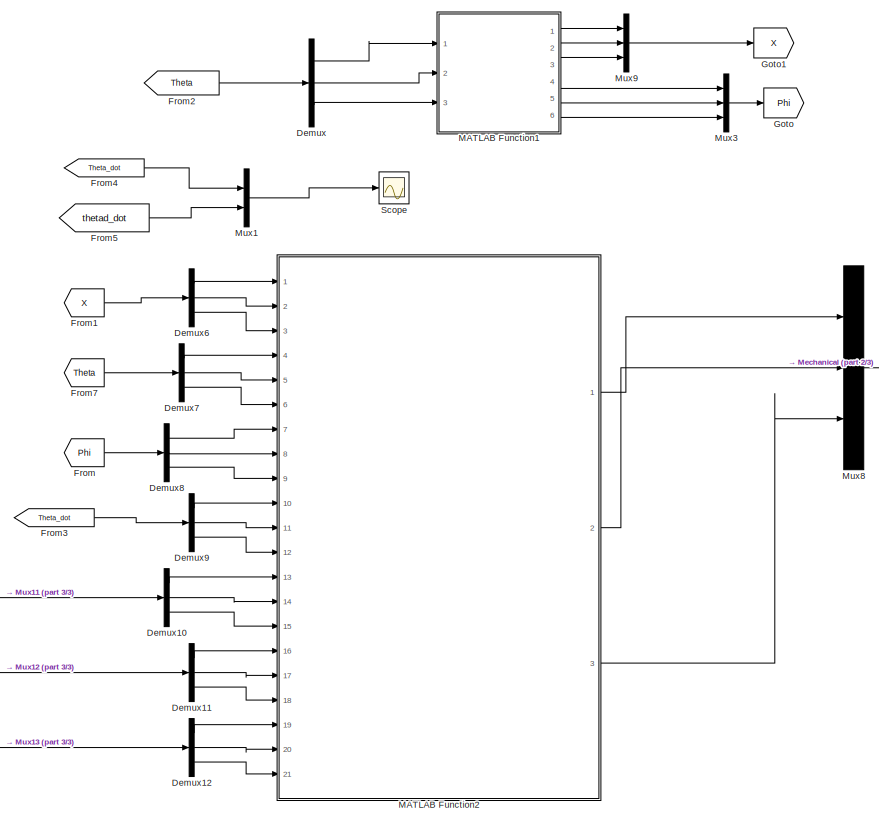
[diagram: root canvas - part 1/3, center side, full height]
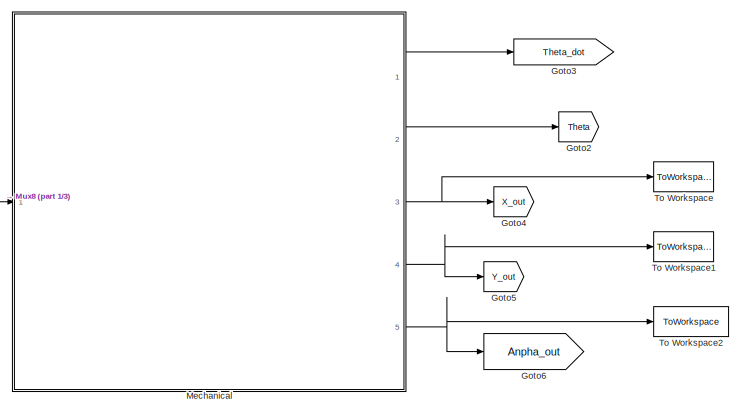
[diagram: root canvas - part 2/3, middle right region]
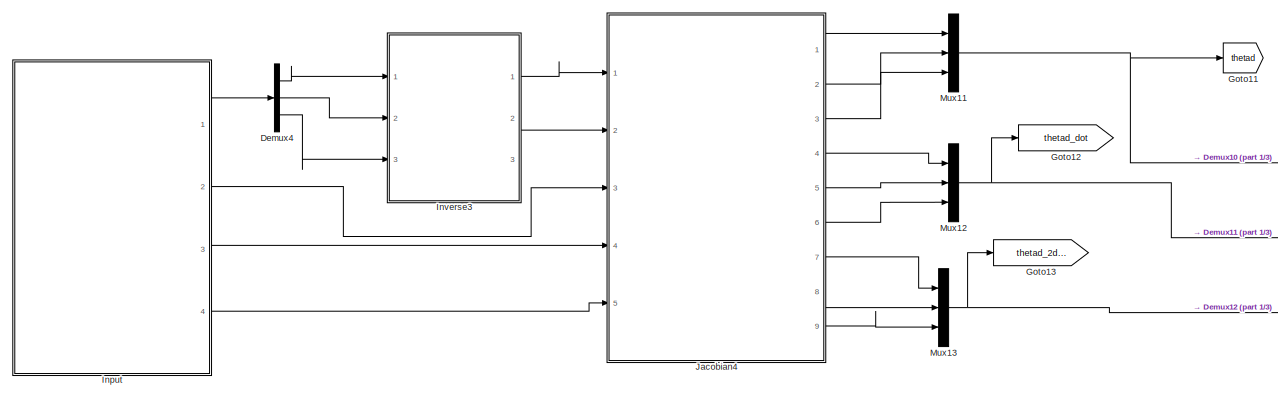
[diagram: root canvas - part 3/3, bottom left region]
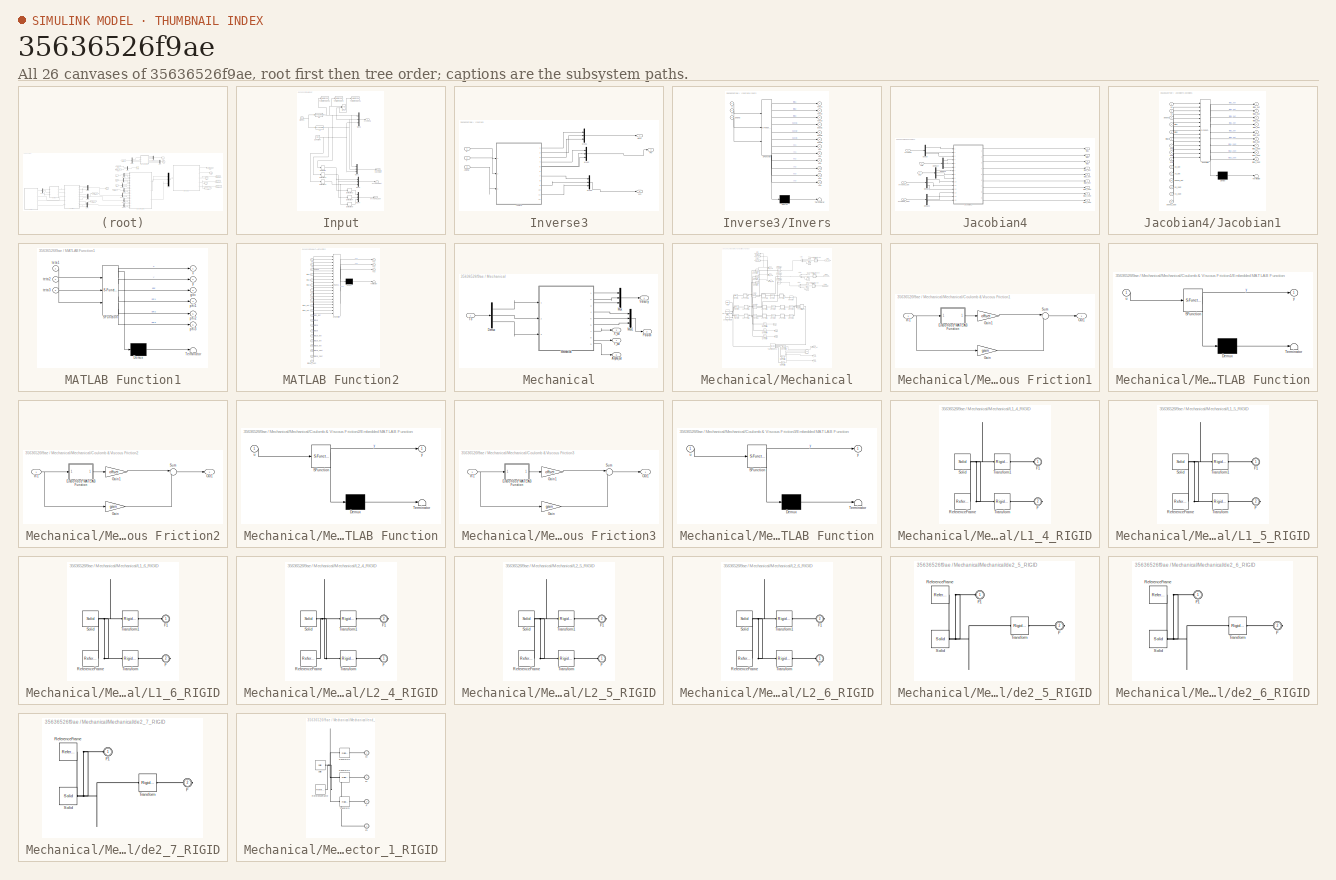
[diagram: thumbnail index - all 26 canvases of the model, root first then tree order]
MODEL slx_35636526f9ae
KIND model
CONFIG AbsTol = auto
CONFIG EnableMultiTasking = on
CONFIG FixedStep = 1e-3
CONFIG MaxStep = auto
CONFIG MinStep = auto
CONFIG RelTol = 1e-3
CONFIG SampleTimeConstraint = Unconstrained
CONFIG Solver = ode3
CONFIG SolverName = ode3
CONFIG StartTime = 0.0
CONFIG StopTime = 7
BLOCK [Demux] Demux
  DisplayOption = bar
  Outputs = 3
  Ports = [1, 3]
BLOCK [Demux] Demux10
  DisplayOption = bar
  Outputs = 3
  Ports = [1, 3]
BLOCK [Demux] Demux11
  DisplayOption = bar
  Outputs = 3
  Ports = [1, 3]
BLOCK [Demux] Demux12
  DisplayOption = bar
  Outputs = 3
  Ports = [1, 3]
BLOCK [Demux] Demux4
  DisplayOption = bar
  Outputs = 3
  Ports = [1, 3]
BLOCK [Demux] Demux6
  DisplayOption = bar
  Outputs = 3
  Ports = [1, 3]
BLOCK [Demux] Demux7
  DisplayOption = bar
  Outputs = 3
  Ports = [1, 3]
BLOCK [Demux] Demux8
  DisplayOption = bar
  Outputs = 3
  Ports = [1, 3]
BLOCK [Demux] Demux9
  DisplayOption = bar
  Outputs = 3
  Ports = [1, 3]
BLOCK [From] From
  GotoTag = Phi
BLOCK [From] From1
  GotoTag = X
BLOCK [From] From2
  GotoTag = Theta
BLOCK [From] From3
  GotoTag = Theta_dot
BLOCK [From] From4
  GotoTag = Theta_dot
BLOCK [From] From5
  GotoTag = thetad_dot
BLOCK [From] From7
  GotoTag = Theta
BLOCK [Goto] Goto
  GotoTag = Phi
BLOCK [Goto] Goto1
  GotoTag = X
BLOCK [Goto] Goto11
  GotoTag = thetad
BLOCK [Goto] Goto12
  GotoTag = thetad_dot
BLOCK [Goto] Goto13
  GotoTag = thetad_2dot
BLOCK [Goto] Goto2
  GotoTag = Theta
BLOCK [Goto] Goto3
  GotoTag = Theta_dot
BLOCK [Goto] Goto4
  GotoTag = X_out
BLOCK [Goto] Goto5
  GotoTag = Y_out
BLOCK [Goto] Goto6
  GotoTag = Anpha_out
BLOCK [SubSystem] Input
  Ports = [0, 4]
  RequestExecContextInheritance = off
BLOCK [Clock] Input/Clock1
  Decimation = 1
BLOCK [Constant] Input/Constant
  Value = pi/12
BLOCK [Derivative] Input/Derivative
BLOCK [Derivative] Input/Derivative1
BLOCK [Derivative] Input/Derivative2
BLOCK [Derivative] Input/Derivative3
BLOCK [Derivative] Input/Derivative4
BLOCK [Derivative] Input/Derivative5
BLOCK [Reference] Input/INPUT  REF=simulink/Sinks/XY Graph
  Ports = [2]
  SourceBlock = simulink/Sinks/XY Graph
  SourceProductBaseCode = SL
  SourceProductName = Simulink
  SourceType = XY scope.
BLOCK [Mux] Input/Mux1
  DisplayOption = bar
  Inputs = 3
  Ports = [3, 1]
BLOCK [Mux] Input/Mux3
  DisplayOption = bar
  Inputs = 3
  Ports = [3, 1]
BLOCK [Mux] Input/Mux4
  DisplayOption = bar
  Inputs = 3
  Ports = [3, 1]
BLOCK [Mux] Input/Mux5
  DisplayOption = bar
  Inputs = 3
  Ports = [3, 1]
BLOCK [ToWorkspace] Input/To Workspace
  MaxDataPoints = inf
  Ports = [1]
  SampleTime = -1
  VariableName = Xd
BLOCK [ToWorkspace] Input/To Workspace1
  MaxDataPoints = inf
  Ports = [1]
  SampleTime = -1
  VariableName = Yd
BLOCK [ToWorkspace] Input/To Workspace2
  MaxDataPoints = inf
  Ports = [1]
  SampleTime = -1
  SaveFormat = Timeseries
  VariableName = Time
BLOCK [Outport] Input/X Y Anpha
  IconDisplay = Port number
BLOCK [Outport] Input/X Y Anpha 2dot
  IconDisplay = Port number
  Port = 4
BLOCK [Outport] Input/X Y Anpha Jacobian
  IconDisplay = Port number
  Port = 2
BLOCK [Outport] Input/X Y Anpha dot
  IconDisplay = Port number
  Port = 3
BLOCK [Fcn] Input/X1
  Expr = 0.49+0.03*cos(pi*u(1)/3)
BLOCK [Fcn] Input/Y1
  Expr = 0.37+0.03*sin(pi*u(1)/3)
BLOCK [SubSystem] Inverse3
  Ports = [3, 3]
  RequestExecContextInheritance = off
BLOCK [Inport] Inverse3/Anpha
  IconDisplay = Port number
  Port = 3
BLOCK [SubSystem] Inverse3/Invers
  ErrorFcn = Stateflow.Translate.translate
  PermitHierarchicalResolution = ExplicitOnly
  Ports = [3, 12]
  RequestExecContextInheritance = off
  SFBlockType = MATLAB Function
  TreatAsAtomicUnit = on
BLOCK [Demux] Inverse3/Invers/ Demux 
  Outputs = 1
  Ports = [1, 1]
BLOCK [S-Function] Inverse3/Invers/ SFunction 
  EnableBusSupport = on
  FunctionName = sf_sfun
  PortCounts = [3 13]
  Ports = [3, 13]
  SFcnIsStateOwnerBlock = off
  SFunctionDeploymentMode = off
  Tag = Stateflow S-Function CTC_3PPP 9
BLOCK [Terminator] Inverse3/Invers/ Terminator 
BLOCK [Inport] Inverse3/Invers/anpha
  IconDisplay = Port number
  Port = 3
BLOCK [Outport] Inverse3/Invers/passi1
  IconDisplay = Port number
  Port = 4
BLOCK [Outport] Inverse3/Invers/passi2
  IconDisplay = Port number
  Port = 5
BLOCK [Outport] Inverse3/Invers/passi3
  IconDisplay = Port number
  Port = 6
BLOCK [Outport] Inverse3/Invers/teta1
  IconDisplay = Port number
BLOCK [Outport] Inverse3/Invers/teta2
  IconDisplay = Port number
  Port = 2
BLOCK [Outport] Inverse3/Invers/teta3
  IconDisplay = Port number
  Port = 3
BLOCK [Inport] Inverse3/Invers/x
  IconDisplay = Port number
BLOCK [Outport] Inverse3/Invers/xc1
  IconDisplay = Port number
  Port = 7
BLOCK [Outport] Inverse3/Invers/xc2
  IconDisplay = Port number
  Port = 9
BLOCK [Outport] Inverse3/Invers/xc3
  IconDisplay = Port number
  Port = 11
BLOCK [Inport] Inverse3/Invers/y
  IconDisplay = Port number
  Port = 2
BLOCK [Outport] Inverse3/Invers/yc1
  IconDisplay = Port number
  Port = 8
BLOCK [Outport] Inverse3/Invers/yc2
  IconDisplay = Port number
  Port = 10
BLOCK [Outport] Inverse3/Invers/yc3
  IconDisplay = Port number
  Port = 12
BLOCK [Mux] Inverse3/Mux1
  DisplayOption = bar
  Inputs = 3
  Ports = [3, 1]
BLOCK [Mux] Inverse3/Mux2
  DisplayOption = bar
  Inputs = 3
  Ports = [3, 1]
BLOCK [Mux] Inverse3/Mux3
  DisplayOption = bar
  Inputs = 3
  Ports = [3, 1]
BLOCK [Outport] Inverse3/Phi
  IconDisplay = Port number
  Port = 2
BLOCK [Outport] Inverse3/Teta
  IconDisplay = Port number
BLOCK [Inport] Inverse3/X
  IconDisplay = Port number
BLOCK [Inport] Inverse3/Y
  IconDisplay = Port number
  Port = 2
BLOCK [Outport] Inverse3/xc2
  IconDisplay = Port number
  Port = 3
BLOCK [SubSystem] Jacobian4
  Ports = [5, 9]
  RequestExecContextInheritance = off
BLOCK [Demux] Jacobian4/Demux
  DisplayOption = bar
  Outputs = 3
  Ports = [1, 3]
BLOCK [Demux] Jacobian4/Demux1
  DisplayOption = bar
  Outputs = 3
  Ports = [1, 3]
BLOCK [Demux] Jacobian4/Demux2
  DisplayOption = bar
  Outputs = 3
  Ports = [1, 3]
BLOCK [Demux] Jacobian4/Demux4
  DisplayOption = bar
  Outputs = 3
  Ports = [1, 3]
BLOCK [Demux] Jacobian4/Demux5
  DisplayOption = bar
  Outputs = 3
  Ports = [1, 3]
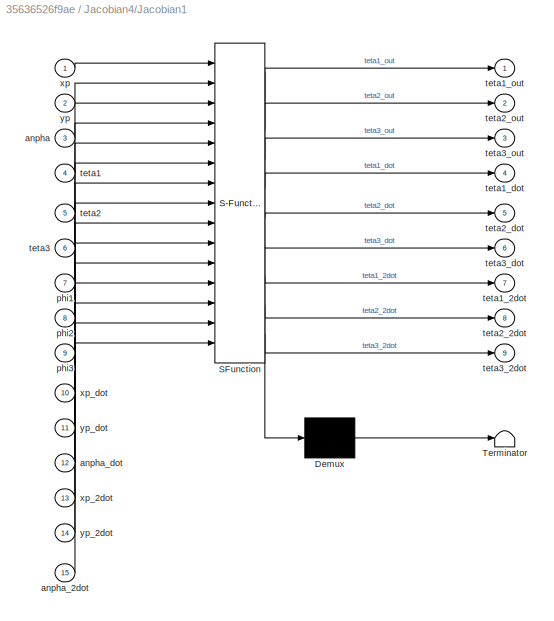
BLOCK [SubSystem] Jacobian4/Jacobian1
  ErrorFcn = Stateflow.Translate.translate
  PermitHierarchicalResolution = ExplicitOnly
  Ports = [15, 9]
  RequestExecContextInheritance = off
  SFBlockType = MATLAB Function
  TreatAsAtomicUnit = on
BLOCK [Demux] Jacobian4/Jacobian1/ Demux 
  Outputs = 1
  Ports = [1, 1]
BLOCK [S-Function] Jacobian4/Jacobian1/ SFunction 
  EnableBusSupport = on
  FunctionName = sf_sfun
  PortCounts = [15 10]
  Ports = [15, 10]
  SFcnIsStateOwnerBlock = off
  SFunctionDeploymentMode = off
  Tag = Stateflow S-Function CTC_3PPP 11
BLOCK [Terminator] Jacobian4/Jacobian1/ Terminator 
BLOCK [Inport] Jacobian4/Jacobian1/anpha
  IconDisplay = Port number
  Port = 3
BLOCK [Inport] Jacobian4/Jacobian1/anpha_2dot
  IconDisplay = Port number
  Port = 15
BLOCK [Inport] Jacobian4/Jacobian1/anpha_dot
  IconDisplay = Port number
  Port = 12
BLOCK [Inport] Jacobian4/Jacobian1/phi1
  IconDisplay = Port number
  Port = 7
BLOCK [Inport] Jacobian4/Jacobian1/phi2
  IconDisplay = Port number
  Port = 8
BLOCK [Inport] Jacobian4/Jacobian1/phi3
  IconDisplay = Port number
  Port = 9
BLOCK [Inport] Jacobian4/Jacobian1/teta1
  IconDisplay = Port number
  Port = 4
BLOCK [Outport] Jacobian4/Jacobian1/teta1_2dot
  IconDisplay = Port number
  Port = 7
BLOCK [Outport] Jacobian4/Jacobian1/teta1_dot
  IconDisplay = Port number
  Port = 4
BLOCK [Outport] Jacobian4/Jacobian1/teta1_out
  IconDisplay = Port number
BLOCK [Inport] Jacobian4/Jacobian1/teta2
  IconDisplay = Port number
  Port = 5
BLOCK [Outport] Jacobian4/Jacobian1/teta2_2dot
  IconDisplay = Port number
  Port = 8
BLOCK [Outport] Jacobian4/Jacobian1/teta2_dot
  IconDisplay = Port number
  Port = 5
BLOCK [Outport] Jacobian4/Jacobian1/teta2_out
  IconDisplay = Port number
  Port = 2
BLOCK [Inport] Jacobian4/Jacobian1/teta3
  IconDisplay = Port number
  Port = 6
BLOCK [Outport] Jacobian4/Jacobian1/teta3_2dot
  IconDisplay = Port number
  Port = 9
BLOCK [Outport] Jacobian4/Jacobian1/teta3_dot
  IconDisplay = Port number
  Port = 6
BLOCK [Outport] Jacobian4/Jacobian1/teta3_out
  IconDisplay = Port number
  Port = 3
BLOCK [Inport] Jacobian4/Jacobian1/xp
  IconDisplay = Port number
BLOCK [Inport] Jacobian4/Jacobian1/xp_2dot
  IconDisplay = Port number
  Port = 13
BLOCK [Inport] Jacobian4/Jacobian1/xp_dot
  IconDisplay = Port number
  Port = 10
BLOCK [Inport] Jacobian4/Jacobian1/yp
  IconDisplay = Port number
  Port = 2
BLOCK [Inport] Jacobian4/Jacobian1/yp_2dot
  IconDisplay = Port number
  Port = 14
BLOCK [Inport] Jacobian4/Jacobian1/yp_dot
  IconDisplay = Port number
  Port = 11
BLOCK [Inport] Jacobian4/Phi
  IconDisplay = Port number
  Port = 2
BLOCK [Inport] Jacobian4/Teta
  IconDisplay = Port number
BLOCK [Inport] Jacobian4/XYAnpha
  IconDisplay = Port number
  Port = 3
BLOCK [Inport] Jacobian4/XYAnpha_2dot
  IconDisplay = Port number
  Port = 5
BLOCK [Inport] Jacobian4/XYAnpha_dot
  IconDisplay = Port number
  Port = 4
BLOCK [Outport] Jacobian4/teta1
  IconDisplay = Port number
BLOCK [Outport] Jacobian4/teta1_2dot
  IconDisplay = Port number
  Port = 7
BLOCK [Outport] Jacobian4/teta1_dot
  IconDisplay = Port number
  Port = 4
BLOCK [Outport] Jacobian4/teta2
  IconDisplay = Port number
  Port = 2
BLOCK [Outport] Jacobian4/teta2_2dot
  IconDisplay = Port number
  Port = 8
BLOCK [Outport] Jacobian4/teta2_dot
  IconDisplay = Port number
  Port = 5
BLOCK [Outport] Jacobian4/teta3
  IconDisplay = Port number
  Port = 3
BLOCK [Outport] Jacobian4/teta3_2dot
  IconDisplay = Port number
  Port = 9
BLOCK [Outport] Jacobian4/teta3_dot
  IconDisplay = Port number
  Port = 6
BLOCK [SubSystem] MATLAB Function1
  ErrorFcn = Stateflow.Translate.translate
  PermitHierarchicalResolution = ExplicitOnly
  Ports = [3, 6]
  RequestExecContextInheritance = off
  SFBlockType = MATLAB Function
  TreatAsAtomicUnit = on
BLOCK [Demux] MATLAB Function1/ Demux 
  Outputs = 1
  Ports = [1, 1]
BLOCK [S-Function] MATLAB Function1/ SFunction 
  EnableBusSupport = on
  FunctionName = sf_sfun
  PortCounts = [3 7]
  Ports = [3, 7]
  SFcnIsStateOwnerBlock = off
  SFunctionDeploymentMode = off
  Tag = Stateflow S-Function CTC_3PPP 1
BLOCK [Terminator] MATLAB Function1/ Terminator 
BLOCK [Outport] MATLAB Function1/goc
  IconDisplay = Port number
  Port = 3
BLOCK [Outport] MATLAB Function1/phi1
  IconDisplay = Port number
  Port = 4
BLOCK [Outport] MATLAB Function1/phi2
  IconDisplay = Port number
  Port = 5
BLOCK [Outport] MATLAB Function1/phi3
  IconDisplay = Port number
  Port = 6
BLOCK [Inport] MATLAB Function1/teta1
  IconDisplay = Port number
BLOCK [Inport] MATLAB Function1/teta2
  IconDisplay = Port number
  Port = 2
BLOCK [Inport] MATLAB Function1/teta3
  IconDisplay = Port number
  Port = 3
BLOCK [Outport] MATLAB Function1/x
  IconDisplay = Port number
BLOCK [Outport] MATLAB Function1/y
  IconDisplay = Port number
  Port = 2
BLOCK [SubSystem] MATLAB Function2
  ErrorFcn = Stateflow.Translate.translate
  PermitHierarchicalResolution = ExplicitOnly
  Ports = [21, 3]
  RequestExecContextInheritance = off
  SFBlockType = MATLAB Function
  TreatAsAtomicUnit = on
BLOCK [Demux] MATLAB Function2/ Demux 
  Outputs = 1
  Ports = [1, 1]
BLOCK [S-Function] MATLAB Function2/ SFunction 
  EnableBusSupport = on
  FunctionName = sf_sfun
  PortCounts = [21 4]
  Ports = [21, 4]
  SFcnIsStateOwnerBlock = off
  SFunctionDeploymentMode = off
  Tag = Stateflow S-Function CTC_3PPP 6
BLOCK [Terminator] MATLAB Function2/ Terminator 
BLOCK [Outport] MATLAB Function2/To1
  IconDisplay = Port number
BLOCK [Outport] MATLAB Function2/To2
  IconDisplay = Port number
  Port = 2
BLOCK [Outport] MATLAB Function2/To3
  IconDisplay = Port number
  Port = 3
BLOCK [Inport] MATLAB Function2/anpha
  IconDisplay = Port number
  Port = 3
BLOCK [Inport] MATLAB Function2/phi1
  IconDisplay = Port number
  Port = 7
BLOCK [Inport] MATLAB Function2/phi2
  IconDisplay = Port number
  Port = 8
BLOCK [Inport] MATLAB Function2/phi3
  IconDisplay = Port number
  Port = 9
BLOCK [Inport] MATLAB Function2/teta1
  IconDisplay = Port number
  Port = 4
BLOCK [Inport] MATLAB Function2/teta1_dot
  IconDisplay = Port number
  Port = 10
BLOCK [Inport] MATLAB Function2/teta1d
  IconDisplay = Port number
  Port = 13
BLOCK [Inport] MATLAB Function2/teta1d_2dot
  IconDisplay = Port number
  Port = 19
BLOCK [Inport] MATLAB Function2/teta1d_dot
  IconDisplay = Port number
  Port = 16
BLOCK [Inport] MATLAB Function2/teta2
  IconDisplay = Port number
  Port = 5
BLOCK [Inport] MATLAB Function2/teta2_dot
  IconDisplay = Port number
  Port = 11
BLOCK [Inport] MATLAB Function2/teta2d
  IconDisplay = Port number
  Port = 14
BLOCK [Inport] MATLAB Function2/teta2d_2dot
  IconDisplay = Port number
  Port = 20
BLOCK [Inport] MATLAB Function2/teta2d_dot
  IconDisplay = Port number
  Port = 17
BLOCK [Inport] MATLAB Function2/teta3
  IconDisplay = Port number
  Port = 6
BLOCK [Inport] MATLAB Function2/teta3_dot
  IconDisplay = Port number
  Port = 12
BLOCK [Inport] MATLAB Function2/teta3d
  IconDisplay = Port number
  Port = 15
BLOCK [Inport] MATLAB Function2/teta3d_2dot
  IconDisplay = Port number
  Port = 21
BLOCK [Inport] MATLAB Function2/teta3d_dot
  IconDisplay = Port number
  Port = 18
BLOCK [Inport] MATLAB Function2/xp
  IconDisplay = Port number
BLOCK [Inport] MATLAB Function2/yp
  IconDisplay = Port number
  Port = 2
BLOCK [SubSystem] Mechanical
  Ports = [1, 5]
  RequestExecContextInheritance = off
BLOCK [Outport] Mechanical/Anpha_out
  IconDisplay = Port number
  Port = 5
BLOCK [Demux] Mechanical/Demux
  DisplayOption = bar
  Outputs = 3
  Ports = [1, 3]
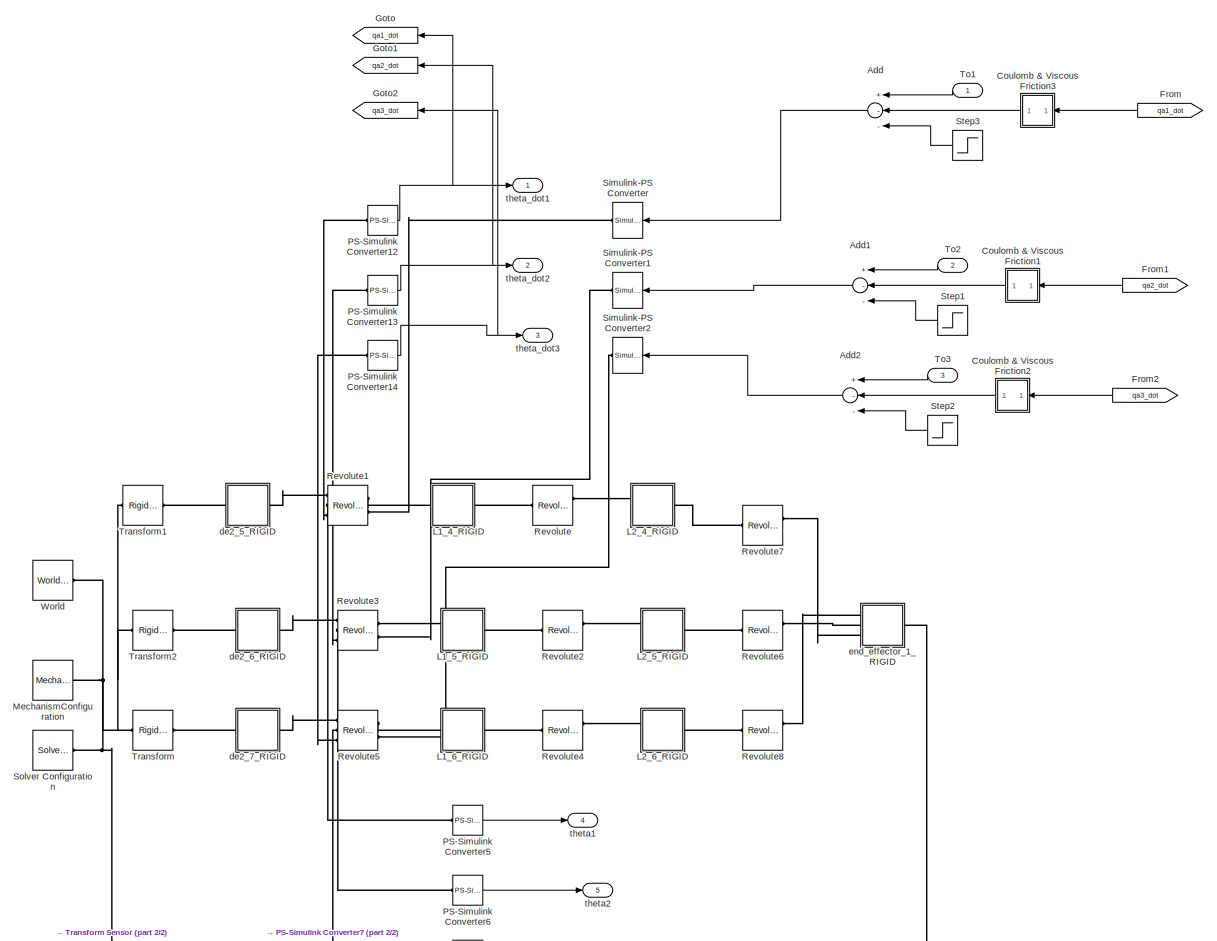
[diagram: Mechanical/Mechanical - part 1/2, full width, middle band]
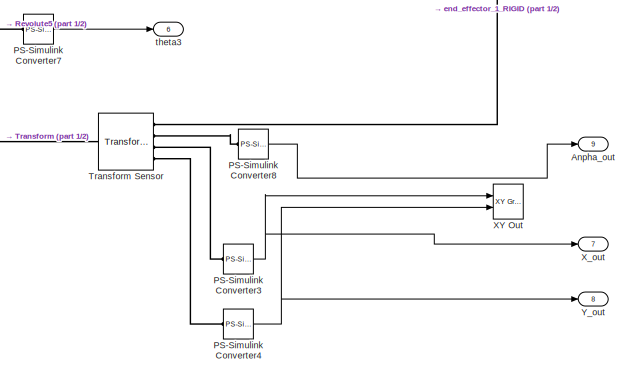
[diagram: Mechanical/Mechanical - part 2/2, bottom center region]
BLOCK [SubSystem] Mechanical/Mechanical
  Ports = [3, 9]
  RequestExecContextInheritance = off
BLOCK [Sum] Mechanical/Mechanical/Add
  InputSameDT = off
  Inputs = +--
  OutDataTypeStr = Inherit: Inherit via internal rule
  Ports = [3, 1]
  SaturateOnIntegerOverflow = off
BLOCK [Sum] Mechanical/Mechanical/Add1
  InputSameDT = off
  Inputs = +--
  OutDataTypeStr = Inherit: Inherit via internal rule
  Ports = [3, 1]
  SaturateOnIntegerOverflow = off
BLOCK [Sum] Mechanical/Mechanical/Add2
  InputSameDT = off
  Inputs = +--
  OutDataTypeStr = Inherit: Inherit via internal rule
  Ports = [3, 1]
  SaturateOnIntegerOverflow = off
BLOCK [Outport] Mechanical/Mechanical/Anpha_out
  IconDisplay = Port number
  Port = 9
BLOCK [SubSystem] Mechanical/Mechanical/Coulomb & Viscous Friction1
  AncestorBlock = simulink/Discontinuities/Coulomb &\nViscous Friction
  Ports = [1, 1]
  RequestExecContextInheritance = off
BLOCK [SubSystem] Mechanical/Mechanical/Coulomb & Viscous Friction1/Embedded MATLAB Function
  ErrorFcn = Stateflow.Translate.translate
  PermitHierarchicalResolution = ExplicitOnly
  Ports = [1, 1]
  RequestExecContextInheritance = off
  SFBlockType = MATLAB Function
  TreatAsAtomicUnit = on
BLOCK [Demux] Mechanical/Mechanical/Coulomb & Viscous Friction1/Embedded MATLAB Function/ Demux 
  Outputs = 1
  Ports = [1, 1]
BLOCK [S-Function] Mechanical/Mechanical/Coulomb & Viscous Friction1/Embedded MATLAB Function/ SFunction 
  EnableBusSupport = on
  FunctionName = sf_sfun
  PortCounts = [1 2]
  Ports = [1, 2]
  SFcnIsStateOwnerBlock = off
  SFunctionDeploymentMode = off
  Tag = Stateflow S-Function CTC_3PPP 4
BLOCK [Terminator] Mechanical/Mechanical/Coulomb & Viscous Friction1/Embedded MATLAB Function/ Terminator 
BLOCK [Inport] Mechanical/Mechanical/Coulomb & Viscous Friction1/Embedded MATLAB Function/u
  IconDisplay = Port number
BLOCK [Outport] Mechanical/Mechanical/Coulomb & Viscous Friction1/Embedded MATLAB Function/y
  IconDisplay = Port number
BLOCK [Gain] Mechanical/Mechanical/Coulomb & Viscous Friction1/Gain
  DisableCoverage = on
  Gain = gain
  ParamDataTypeStr = Inherit: Inherit via internal rule
BLOCK [Gain] Mechanical/Mechanical/Coulomb & Viscous Friction1/Gain1
  DisableCoverage = on
  Gain = offset
  OutDataTypeStr = Inherit: Inherit via back propagation
  ParamDataTypeStr = Inherit: Inherit via internal rule
BLOCK [Inport] Mechanical/Mechanical/Coulomb & Viscous Friction1/In1
  IconDisplay = Port number
BLOCK [Outport] Mechanical/Mechanical/Coulomb & Viscous Friction1/Out1
  IconDisplay = Port number
BLOCK [Sum] Mechanical/Mechanical/Coulomb & Viscous Friction1/Sum
  IconShape = round
  Inputs = |++
  Ports = [2, 1]
BLOCK [SubSystem] Mechanical/Mechanical/Coulomb & Viscous Friction2
  AncestorBlock = simulink/Discontinuities/Coulomb &\nViscous Friction
  Ports = [1, 1]
  RequestExecContextInheritance = off
BLOCK [SubSystem] Mechanical/Mechanical/Coulomb & Viscous Friction2/Embedded MATLAB Function
  ErrorFcn = Stateflow.Translate.translate
  PermitHierarchicalResolution = ExplicitOnly
  Ports = [1, 1]
  RequestExecContextInheritance = off
  SFBlockType = MATLAB Function
  TreatAsAtomicUnit = on
BLOCK [Demux] Mechanical/Mechanical/Coulomb & Viscous Friction2/Embedded MATLAB Function/ Demux 
  Outputs = 1
  Ports = [1, 1]
BLOCK [S-Function] Mechanical/Mechanical/Coulomb & Viscous Friction2/Embedded MATLAB Function/ SFunction 
  EnableBusSupport = on
  FunctionName = sf_sfun
  PortCounts = [1 2]
  Ports = [1, 2]
  SFcnIsStateOwnerBlock = off
  SFunctionDeploymentMode = off
  Tag = Stateflow S-Function CTC_3PPP 5
BLOCK [Terminator] Mechanical/Mechanical/Coulomb & Viscous Friction2/Embedded MATLAB Function/ Terminator 
BLOCK [Inport] Mechanical/Mechanical/Coulomb & Viscous Friction2/Embedded MATLAB Function/u
  IconDisplay = Port number
BLOCK [Outport] Mechanical/Mechanical/Coulomb & Viscous Friction2/Embedded MATLAB Function/y
  IconDisplay = Port number
BLOCK [Gain] Mechanical/Mechanical/Coulomb & Viscous Friction2/Gain
  DisableCoverage = on
  Gain = gain
  ParamDataTypeStr = Inherit: Inherit via internal rule
BLOCK [Gain] Mechanical/Mechanical/Coulomb & Viscous Friction2/Gain1
  DisableCoverage = on
  Gain = offset
  OutDataTypeStr = Inherit: Inherit via back propagation
  ParamDataTypeStr = Inherit: Inherit via internal rule
BLOCK [Inport] Mechanical/Mechanical/Coulomb & Viscous Friction2/In1
  IconDisplay = Port number
BLOCK [Outport] Mechanical/Mechanical/Coulomb & Viscous Friction2/Out1
  IconDisplay = Port number
BLOCK [Sum] Mechanical/Mechanical/Coulomb & Viscous Friction2/Sum
  IconShape = round
  Inputs = |++
  Ports = [2, 1]
BLOCK [SubSystem] Mechanical/Mechanical/Coulomb & Viscous Friction3
  AncestorBlock = simulink/Discontinuities/Coulomb &\nViscous Friction
  Ports = [1, 1]
  RequestExecContextInheritance = off
BLOCK [SubSystem] Mechanical/Mechanical/Coulomb & Viscous Friction3/Embedded MATLAB Function
  ErrorFcn = Stateflow.Translate.translate
  PermitHierarchicalResolution = ExplicitOnly
  Ports = [1, 1]
  RequestExecContextInheritance = off
  SFBlockType = MATLAB Function
  TreatAsAtomicUnit = on
BLOCK [Demux] Mechanical/Mechanical/Coulomb & Viscous Friction3/Embedded MATLAB Function/ Demux 
  Outputs = 1
  Ports = [1, 1]
BLOCK [S-Function] Mechanical/Mechanical/Coulomb & Viscous Friction3/Embedded MATLAB Function/ SFunction 
  EnableBusSupport = on
  FunctionName = sf_sfun
  PortCounts = [1 2]
  Ports = [1, 2]
  SFcnIsStateOwnerBlock = off
  SFunctionDeploymentMode = off
  Tag = Stateflow S-Function CTC_3PPP 2
BLOCK [Terminator] Mechanical/Mechanical/Coulomb & Viscous Friction3/Embedded MATLAB Function/ Terminator 
BLOCK [Inport] Mechanical/Mechanical/Coulomb & Viscous Friction3/Embedded MATLAB Function/u
  IconDisplay = Port number
BLOCK [Outport] Mechanical/Mechanical/Coulomb & Viscous Friction3/Embedded MATLAB Function/y
  IconDisplay = Port number
BLOCK [Gain] Mechanical/Mechanical/Coulomb & Viscous Friction3/Gain
  DisableCoverage = on
  Gain = gain
  ParamDataTypeStr = Inherit: Inherit via internal rule
BLOCK [Gain] Mechanical/Mechanical/Coulomb & Viscous Friction3/Gain1
  DisableCoverage = on
  Gain = offset
  OutDataTypeStr = Inherit: Inherit via back propagation
  ParamDataTypeStr = Inherit: Inherit via internal rule
BLOCK [Inport] Mechanical/Mechanical/Coulomb & Viscous Friction3/In1
  IconDisplay = Port number
BLOCK [Outport] Mechanical/Mechanical/Coulomb & Viscous Friction3/Out1
  IconDisplay = Port number
BLOCK [Sum] Mechanical/Mechanical/Coulomb & Viscous Friction3/Sum
  IconShape = round
  Inputs = |++
  Ports = [2, 1]
BLOCK [From] Mechanical/Mechanical/From
  GotoTag = qa1_dot
BLOCK [From] Mechanical/Mechanical/From1
  GotoTag = qa2_dot
BLOCK [From] Mechanical/Mechanical/From2
  GotoTag = qa3_dot
BLOCK [Goto] Mechanical/Mechanical/Goto
  GotoTag = qa1_dot
BLOCK [Goto] Mechanical/Mechanical/Goto1
  GotoTag = qa2_dot
BLOCK [Goto] Mechanical/Mechanical/Goto2
  GotoTag = qa3_dot
BLOCK [SubSystem] Mechanical/Mechanical/L1_4_RIGID
  Ports = [0, 0, 0, 0, 0, 1, 1]
  RequestExecContextInheritance = off
BLOCK [PMIOPort] Mechanical/Mechanical/L1_4_RIGID/F
  Port = 2
  Side = Right
BLOCK [PMIOPort] Mechanical/Mechanical/L1_4_RIGID/F1
  Side = Left
BLOCK [Reference] Mechanical/Mechanical/L1_4_RIGID/ReferenceFrame  REF=sm_lib/Frames and
Transforms/Reference
Frame
  Ports = [0, 0, 0, 0, 0, 0, 1]
  SourceBlock = sm_lib/Frames and\nTransforms/Reference\nFrame
  SourceProductBaseCode = MS
  SourceProductName = Simscape Multibody
  SourceType = Reference\nFrame
BLOCK [Reference] Mechanical/Mechanical/L1_4_RIGID/Solid  REF=sm_lib/Body Elements/Solid
  Ports = [0, 0, 0, 0, 0, 0, 1]
  SourceBlock = sm_lib/Body Elements/Solid
  SourceProductBaseCode = MS
  SourceProductName = Simscape Multibody
  SourceType = Solid
BLOCK [Reference] Mechanical/Mechanical/L1_4_RIGID/Transform  REF=sm_lib/Frames and
Transforms/Rigid
Transform
  Ports = [0, 0, 0, 0, 0, 1, 1]
  SourceBlock = sm_lib/Frames and\nTransforms/Rigid\nTransform
  SourceProductBaseCode = MS
  SourceProductName = Simscape Multibody
  SourceType = Rigid\nTransform
BLOCK [Reference] Mechanical/Mechanical/L1_4_RIGID/Transform1  REF=sm_lib/Frames and
Transforms/Rigid
Transform
  Ports = [0, 0, 0, 0, 0, 1, 1]
  SourceBlock = sm_lib/Frames and\nTransforms/Rigid\nTransform
  SourceProductBaseCode = MS
  SourceProductName = Simscape Multibody
  SourceType = Rigid\nTransform
BLOCK [SubSystem] Mechanical/Mechanical/L1_5_RIGID
  Ports = [0, 0, 0, 0, 0, 1, 1]
  RequestExecContextInheritance = off
BLOCK [PMIOPort] Mechanical/Mechanical/L1_5_RIGID/F
  Port = 2
  Side = Right
BLOCK [PMIOPort] Mechanical/Mechanical/L1_5_RIGID/F1
  Side = Left
BLOCK [Reference] Mechanical/Mechanical/L1_5_RIGID/ReferenceFrame  REF=sm_lib/Frames and
Transforms/Reference
Frame
  Ports = [0, 0, 0, 0, 0, 0, 1]
  SourceBlock = sm_lib/Frames and\nTransforms/Reference\nFrame
  SourceProductBaseCode = MS
  SourceProductName = Simscape Multibody
  SourceType = Reference\nFrame
BLOCK [Reference] Mechanical/Mechanical/L1_5_RIGID/Solid  REF=sm_lib/Body Elements/Solid
  Ports = [0, 0, 0, 0, 0, 0, 1]
  SourceBlock = sm_lib/Body Elements/Solid
  SourceProductBaseCode = MS
  SourceProductName = Simscape Multibody
  SourceType = Solid
BLOCK [Reference] Mechanical/Mechanical/L1_5_RIGID/Transform  REF=sm_lib/Frames and
Transforms/Rigid
Transform
  Ports = [0, 0, 0, 0, 0, 1, 1]
  SourceBlock = sm_lib/Frames and\nTransforms/Rigid\nTransform
  SourceProductBaseCode = MS
  SourceProductName = Simscape Multibody
  SourceType = Rigid\nTransform
BLOCK [Reference] Mechanical/Mechanical/L1_5_RIGID/Transform1  REF=sm_lib/Frames and
Transforms/Rigid
Transform
  Ports = [0, 0, 0, 0, 0, 1, 1]
  SourceBlock = sm_lib/Frames and\nTransforms/Rigid\nTransform
  SourceProductBaseCode = MS
  SourceProductName = Simscape Multibody
  SourceType = Rigid\nTransform
BLOCK [SubSystem] Mechanical/Mechanical/L1_6_RIGID
  Ports = [0, 0, 0, 0, 0, 1, 1]
  RequestExecContextInheritance = off
BLOCK [PMIOPort] Mechanical/Mechanical/L1_6_RIGID/F
  Port = 2
  Side = Right
BLOCK [PMIOPort] Mechanical/Mechanical/L1_6_RIGID/F1
  Side = Left
BLOCK [Reference] Mechanical/Mechanical/L1_6_RIGID/ReferenceFrame  REF=sm_lib/Frames and
Transforms/Reference
Frame
  Ports = [0, 0, 0, 0, 0, 0, 1]
  SourceBlock = sm_lib/Frames and\nTransforms/Reference\nFrame
  SourceProductBaseCode = MS
  SourceProductName = Simscape Multibody
  SourceType = Reference\nFrame
BLOCK [Reference] Mechanical/Mechanical/L1_6_RIGID/Solid  REF=sm_lib/Body Elements/Solid
  Ports = [0, 0, 0, 0, 0, 0, 1]
  SourceBlock = sm_lib/Body Elements/Solid
  SourceProductBaseCode = MS
  SourceProductName = Simscape Multibody
  SourceType = Solid
BLOCK [Reference] Mechanical/Mechanical/L1_6_RIGID/Transform  REF=sm_lib/Frames and
Transforms/Rigid
Transform
  Ports = [0, 0, 0, 0, 0, 1, 1]
  SourceBlock = sm_lib/Frames and\nTransforms/Rigid\nTransform
  SourceProductBaseCode = MS
  SourceProductName = Simscape Multibody
  SourceType = Rigid\nTransform
BLOCK [Reference] Mechanical/Mechanical/L1_6_RIGID/Transform1  REF=sm_lib/Frames and
Transforms/Rigid
Transform
  Ports = [0, 0, 0, 0, 0, 1, 1]
  SourceBlock = sm_lib/Frames and\nTransforms/Rigid\nTransform
  SourceProductBaseCode = MS
  SourceProductName = Simscape Multibody
  SourceType = Rigid\nTransform
BLOCK [SubSystem] Mechanical/Mechanical/L2_4_RIGID
  Ports = [0, 0, 0, 0, 0, 1, 1]
  RequestExecContextInheritance = off
BLOCK [PMIOPort] Mechanical/Mechanical/L2_4_RIGID/F
  Side = Left
BLOCK [PMIOPort] Mechanical/Mechanical/L2_4_RIGID/F1
  Port = 2
  Side = Right
BLOCK [Reference] Mechanical/Mechanical/L2_4_RIGID/ReferenceFrame  REF=sm_lib/Frames and
Transforms/Reference
Frame
  Ports = [0, 0, 0, 0, 0, 0, 1]
  SourceBlock = sm_lib/Frames and\nTransforms/Reference\nFrame
  SourceProductBaseCode = MS
  SourceProductName = Simscape Multibody
  SourceType = Reference\nFrame
BLOCK [Reference] Mechanical/Mechanical/L2_4_RIGID/Solid  REF=sm_lib/Body Elements/Solid
  Ports = [0, 0, 0, 0, 0, 0, 1]
  SourceBlock = sm_lib/Body Elements/Solid
  SourceProductBaseCode = MS
  SourceProductName = Simscape Multibody
  SourceType = Solid
BLOCK [Reference] Mechanical/Mechanical/L2_4_RIGID/Transform  REF=sm_lib/Frames and
Transforms/Rigid
Transform
  Ports = [0, 0, 0, 0, 0, 1, 1]
  SourceBlock = sm_lib/Frames and\nTransforms/Rigid\nTransform
  SourceProductBaseCode = MS
  SourceProductName = Simscape Multibody
  SourceType = Rigid\nTransform
BLOCK [Reference] Mechanical/Mechanical/L2_4_RIGID/Transform1  REF=sm_lib/Frames and
Transforms/Rigid
Transform
  Ports = [0, 0, 0, 0, 0, 1, 1]
  SourceBlock = sm_lib/Frames and\nTransforms/Rigid\nTransform
  SourceProductBaseCode = MS
  SourceProductName = Simscape Multibody
  SourceType = Rigid\nTransform
BLOCK [SubSystem] Mechanical/Mechanical/L2_5_RIGID
  Ports = [0, 0, 0, 0, 0, 1, 1]
  RequestExecContextInheritance = off
BLOCK [PMIOPort] Mechanical/Mechanical/L2_5_RIGID/F
  Side = Left
BLOCK [PMIOPort] Mechanical/Mechanical/L2_5_RIGID/F1
  Port = 2
  Side = Right
BLOCK [Reference] Mechanical/Mechanical/L2_5_RIGID/ReferenceFrame  REF=sm_lib/Frames and
Transforms/Reference
Frame
  Ports = [0, 0, 0, 0, 0, 0, 1]
  SourceBlock = sm_lib/Frames and\nTransforms/Reference\nFrame
  SourceProductBaseCode = MS
  SourceProductName = Simscape Multibody
  SourceType = Reference\nFrame
BLOCK [Reference] Mechanical/Mechanical/L2_5_RIGID/Solid  REF=sm_lib/Body Elements/Solid
  Ports = [0, 0, 0, 0, 0, 0, 1]
  SourceBlock = sm_lib/Body Elements/Solid
  SourceProductBaseCode = MS
  SourceProductName = Simscape Multibody
  SourceType = Solid
BLOCK [Reference] Mechanical/Mechanical/L2_5_RIGID/Transform  REF=sm_lib/Frames and
Transforms/Rigid
Transform
  Ports = [0, 0, 0, 0, 0, 1, 1]
  SourceBlock = sm_lib/Frames and\nTransforms/Rigid\nTransform
  SourceProductBaseCode = MS
  SourceProductName = Simscape Multibody
  SourceType = Rigid\nTransform
BLOCK [Reference] Mechanical/Mechanical/L2_5_RIGID/Transform1  REF=sm_lib/Frames and
Transforms/Rigid
Transform
  Ports = [0, 0, 0, 0, 0, 1, 1]
  SourceBlock = sm_lib/Frames and\nTransforms/Rigid\nTransform
  SourceProductBaseCode = MS
  SourceProductName = Simscape Multibody
  SourceType = Rigid\nTransform
BLOCK [SubSystem] Mechanical/Mechanical/L2_6_RIGID
  Ports = [0, 0, 0, 0, 0, 1, 1]
  RequestExecContextInheritance = off
BLOCK [PMIOPort] Mechanical/Mechanical/L2_6_RIGID/F
  Side = Left
BLOCK [PMIOPort] Mechanical/Mechanical/L2_6_RIGID/F1
  Port = 2
  Side = Right
BLOCK [Reference] Mechanical/Mechanical/L2_6_RIGID/ReferenceFrame  REF=sm_lib/Frames and
Transforms/Reference
Frame
  Ports = [0, 0, 0, 0, 0, 0, 1]
  SourceBlock = sm_lib/Frames and\nTransforms/Reference\nFrame
  SourceProductBaseCode = MS
  SourceProductName = Simscape Multibody
  SourceType = Reference\nFrame
BLOCK [Reference] Mechanical/Mechanical/L2_6_RIGID/Solid  REF=sm_lib/Body Elements/Solid
  Ports = [0, 0, 0, 0, 0, 0, 1]
  SourceBlock = sm_lib/Body Elements/Solid
  SourceProductBaseCode = MS
  SourceProductName = Simscape Multibody
  SourceType = Solid
BLOCK [Reference] Mechanical/Mechanical/L2_6_RIGID/Transform  REF=sm_lib/Frames and
Transforms/Rigid
Transform
  Ports = [0, 0, 0, 0, 0, 1, 1]
  SourceBlock = sm_lib/Frames and\nTransforms/Rigid\nTransform
  SourceProductBaseCode = MS
  SourceProductName = Simscape Multibody
  SourceType = Rigid\nTransform
BLOCK [Reference] Mechanical/Mechanical/L2_6_RIGID/Transform1  REF=sm_lib/Frames and
Transforms/Rigid
Transform
  Ports = [0, 0, 0, 0, 0, 1, 1]
  SourceBlock = sm_lib/Frames and\nTransforms/Rigid\nTransform
  SourceProductBaseCode = MS
  SourceProductName = Simscape Multibody
  SourceType = Rigid\nTransform
BLOCK [Reference] Mechanical/Mechanical/MechanismConfiguration  REF=sm_lib/Utilities/Mechanism
Configuration
  Ports = [0, 0, 0, 0, 0, 0, 1]
  SourceBlock = sm_lib/Utilities/Mechanism\nConfiguration
  SourceProductBaseCode = MS
  SourceProductName = Simscape Multibody
  SourceType = Mechanism\nConfiguration
BLOCK [Reference] Mechanical/Mechanical/PS-Simulink Converter12  REF=nesl_utility/PS-Simulink
Converter
  Ports = [0, 1, 0, 0, 0, 1]
  SourceBlock = nesl_utility/PS-Simulink\nConverter
  SourceProductBaseCode = SS
  SourceProductName = Simscape
  SourceType = PS-Simulink\nConverter
BLOCK [Reference] Mechanical/Mechanical/PS-Simulink Converter13  REF=nesl_utility/PS-Simulink
Converter
  Ports = [0, 1, 0, 0, 0, 1]
  SourceBlock = nesl_utility/PS-Simulink\nConverter
  SourceProductBaseCode = SS
  SourceProductName = Simscape
  SourceType = PS-Simulink\nConverter
BLOCK [Reference] Mechanical/Mechanical/PS-Simulink Converter14  REF=nesl_utility/PS-Simulink
Converter
  Ports = [0, 1, 0, 0, 0, 1]
  SourceBlock = nesl_utility/PS-Simulink\nConverter
  SourceProductBaseCode = SS
  SourceProductName = Simscape
  SourceType = PS-Simulink\nConverter
BLOCK [Reference] Mechanical/Mechanical/PS-Simulink Converter3  REF=nesl_utility/PS-Simulink
Converter
  Ports = [0, 1, 0, 0, 0, 1]
  SourceBlock = nesl_utility/PS-Simulink\nConverter
  SourceProductBaseCode = SS
  SourceProductName = Simscape
  SourceType = PS-Simulink\nConverter
BLOCK [Reference] Mechanical/Mechanical/PS-Simulink Converter4  REF=nesl_utility/PS-Simulink
Converter
  Ports = [0, 1, 0, 0, 0, 1]
  SourceBlock = nesl_utility/PS-Simulink\nConverter
  SourceProductBaseCode = SS
  SourceProductName = Simscape
  SourceType = PS-Simulink\nConverter
BLOCK [Reference] Mechanical/Mechanical/PS-Simulink Converter5  REF=nesl_utility/PS-Simulink
Converter
  Ports = [0, 1, 0, 0, 0, 1]
  SourceBlock = nesl_utility/PS-Simulink\nConverter
  SourceProductBaseCode = SS
  SourceProductName = Simscape
  SourceType = PS-Simulink\nConverter
BLOCK [Reference] Mechanical/Mechanical/PS-Simulink Converter6  REF=nesl_utility/PS-Simulink
Converter
  Ports = [0, 1, 0, 0, 0, 1]
  SourceBlock = nesl_utility/PS-Simulink\nConverter
  SourceProductBaseCode = SS
  SourceProductName = Simscape
  SourceType = PS-Simulink\nConverter
BLOCK [Reference] Mechanical/Mechanical/PS-Simulink Converter7  REF=nesl_utility/PS-Simulink
Converter
  Ports = [0, 1, 0, 0, 0, 1]
  SourceBlock = nesl_utility/PS-Simulink\nConverter
  SourceProductBaseCode = SS
  SourceProductName = Simscape
  SourceType = PS-Simulink\nConverter
BLOCK [Reference] Mechanical/Mechanical/PS-Simulink Converter8  REF=nesl_utility/PS-Simulink
Converter
  Ports = [0, 1, 0, 0, 0, 1]
  SourceBlock = nesl_utility/PS-Simulink\nConverter
  SourceProductBaseCode = SS
  SourceProductName = Simscape
  SourceType = PS-Simulink\nConverter
BLOCK [Reference] Mechanical/Mechanical/Revolute  REF=sm_lib/Joints/Revolute Joint
  Ports = [0, 0, 0, 0, 0, 1, 2]
  SourceBlock = sm_lib/Joints/Revolute Joint
  SourceProductBaseCode = MS
  SourceProductName = Simscape Multibody
  SourceType = Revolute Joint
BLOCK [Reference] Mechanical/Mechanical/Revolute1  REF=sm_lib/Joints/Revolute Joint
  Ports = [0, 0, 0, 0, 0, 2, 3]
  SourceBlock = sm_lib/Joints/Revolute Joint
  SourceProductBaseCode = MS
  SourceProductName = Simscape Multibody
  SourceType = Revolute Joint
BLOCK [Reference] Mechanical/Mechanical/Revolute2  REF=sm_lib/Joints/Revolute Joint
  Ports = [0, 0, 0, 0, 0, 1, 2]
  SourceBlock = sm_lib/Joints/Revolute Joint
  SourceProductBaseCode = MS
  SourceProductName = Simscape Multibody
  SourceType = Revolute Joint
BLOCK [Reference] Mechanical/Mechanical/Revolute3  REF=sm_lib/Joints/Revolute Joint
  Ports = [0, 0, 0, 0, 0, 2, 3]
  SourceBlock = sm_lib/Joints/Revolute Joint
  SourceProductBaseCode = MS
  SourceProductName = Simscape Multibody
  SourceType = Revolute Joint
BLOCK [Reference] Mechanical/Mechanical/Revolute4  REF=sm_lib/Joints/Revolute Joint
  Ports = [0, 0, 0, 0, 0, 1, 2]
  SourceBlock = sm_lib/Joints/Revolute Joint
  SourceProductBaseCode = MS
  SourceProductName = Simscape Multibody
  SourceType = Revolute Joint
BLOCK [Reference] Mechanical/Mechanical/Revolute5  REF=sm_lib/Joints/Revolute Joint
  Ports = [0, 0, 0, 0, 0, 2, 3]
  SourceBlock = sm_lib/Joints/Revolute Joint
  SourceProductBaseCode = MS
  SourceProductName = Simscape Multibody
  SourceType = Revolute Joint
BLOCK [Reference] Mechanical/Mechanical/Revolute6  REF=sm_lib/Joints/Revolute Joint
  Ports = [0, 0, 0, 0, 0, 1, 2]
  SourceBlock = sm_lib/Joints/Revolute Joint
  SourceProductBaseCode = MS
  SourceProductName = Simscape Multibody
  SourceType = Revolute Joint
BLOCK [Reference] Mechanical/Mechanical/Revolute7  REF=sm_lib/Joints/Revolute Joint
  Ports = [0, 0, 0, 0, 0, 1, 2]
  SourceBlock = sm_lib/Joints/Revolute Joint
  SourceProductBaseCode = MS
  SourceProductName = Simscape Multibody
  SourceType = Revolute Joint
BLOCK [Reference] Mechanical/Mechanical/Revolute8  REF=sm_lib/Joints/Revolute Joint
  Ports = [0, 0, 0, 0, 0, 1, 2]
  SourceBlock = sm_lib/Joints/Revolute Joint
  SourceProductBaseCode = MS
  SourceProductName = Simscape Multibody
  SourceType = Revolute Joint
BLOCK [Reference] Mechanical/Mechanical/Simulink-PS Converter  REF=nesl_utility/Simulink-PS
Converter
  Ports = [1, 0, 0, 0, 0, 0, 1]
  SourceBlock = nesl_utility/Simulink-PS\nConverter
  SourceProductBaseCode = SS
  SourceProductName = Simscape
  SourceType = Simulink-PS\nConverter
BLOCK [Reference] Mechanical/Mechanical/Simulink-PS Converter1  REF=nesl_utility/Simulink-PS
Converter
  Ports = [1, 0, 0, 0, 0, 0, 1]
  SourceBlock = nesl_utility/Simulink-PS\nConverter
  SourceProductBaseCode = SS
  SourceProductName = Simscape
  SourceType = Simulink-PS\nConverter
BLOCK [Reference] Mechanical/Mechanical/Simulink-PS Converter2  REF=nesl_utility/Simulink-PS
Converter
  Ports = [1, 0, 0, 0, 0, 0, 1]
  SourceBlock = nesl_utility/Simulink-PS\nConverter
  SourceProductBaseCode = SS
  SourceProductName = Simscape
  SourceType = Simulink-PS\nConverter
BLOCK [Reference] Mechanical/Mechanical/Solver Configuration  REF=nesl_utility/Solver
Configuration
  Ports = [0, 0, 0, 0, 0, 0, 1]
  SourceBlock = nesl_utility/Solver\nConfiguration
  SourceProductBaseCode = SS
  SourceProductName = Simscape
  SourceType = Solver\nConfiguration
BLOCK [Step] Mechanical/Mechanical/Step1
  After = 0.001
  SampleTime = 0
  Time = 0.5
BLOCK [Step] Mechanical/Mechanical/Step2
  After = 0.001
  SampleTime = 0
  Time = 0.5
BLOCK [Step] Mechanical/Mechanical/Step3
  After = 0.001
  SampleTime = 0
  Time = 0.5
BLOCK [Inport] Mechanical/Mechanical/To1
  IconDisplay = Port number
BLOCK [Inport] Mechanical/Mechanical/To2
  IconDisplay = Port number
  Port = 2
BLOCK [Inport] Mechanical/Mechanical/To3
  IconDisplay = Port number
  Port = 3
BLOCK [Reference] Mechanical/Mechanical/Transform  REF=sm_lib/Frames and
Transforms/Rigid
Transform
  Ports = [0, 0, 0, 0, 0, 1, 1]
  SourceBlock = sm_lib/Frames and\nTransforms/Rigid\nTransform
  SourceProductBaseCode = MS
  SourceProductName = Simscape Multibody
  SourceType = Rigid\nTransform
BLOCK [Reference] Mechanical/Mechanical/Transform Sensor  REF=sm_lib/Frames and
Transforms/Transform
Sensor
  Ports = [0, 0, 0, 0, 0, 1, 4]
  SourceBlock = sm_lib/Frames and\nTransforms/Transform\nSensor
  SourceProductBaseCode = MS
  SourceProductName = Simscape Multibody
  SourceType = Transform\nSensor
BLOCK [Reference] Mechanical/Mechanical/Transform1  REF=sm_lib/Frames and
Transforms/Rigid
Transform
  Ports = [0, 0, 0, 0, 0, 1, 1]
  SourceBlock = sm_lib/Frames and\nTransforms/Rigid\nTransform
  SourceProductBaseCode = MS
  SourceProductName = Simscape Multibody
  SourceType = Rigid\nTransform
BLOCK [Reference] Mechanical/Mechanical/Transform2  REF=sm_lib/Frames and
Transforms/Rigid
Transform
  Ports = [0, 0, 0, 0, 0, 1, 1]
  SourceBlock = sm_lib/Frames and\nTransforms/Rigid\nTransform
  SourceProductBaseCode = MS
  SourceProductName = Simscape Multibody
  SourceType = Rigid\nTransform
BLOCK [Reference] Mechanical/Mechanical/World  REF=sm_lib/Frames and
Transforms/World Frame
  Ports = [0, 0, 0, 0, 0, 0, 1]
  SourceBlock = sm_lib/Frames and\nTransforms/World Frame
  SourceProductBaseCode = MS
  SourceProductName = Simscape Multibody
  SourceType = World Frame
BLOCK [Reference] Mechanical/Mechanical/XY Out  REF=simulink/Sinks/XY Graph
  Ports = [2]
  SourceBlock = simulink/Sinks/XY Graph
  SourceProductBaseCode = SL
  SourceProductName = Simulink
  SourceType = XY scope.
BLOCK [Outport] Mechanical/Mechanical/X_out
  IconDisplay = Port number
  Port = 7
BLOCK [Outport] Mechanical/Mechanical/Y_out
  IconDisplay = Port number
  Port = 8
BLOCK [SubSystem] Mechanical/Mechanical/de2_5_RIGID
  Ports = [0, 0, 0, 0, 0, 1, 1]
  RequestExecContextInheritance = off
BLOCK [PMIOPort] Mechanical/Mechanical/de2_5_RIGID/F
  Port = 2
  Side = Right
BLOCK [PMIOPort] Mechanical/Mechanical/de2_5_RIGID/F1
  Side = Left
BLOCK [Reference] Mechanical/Mechanical/de2_5_RIGID/ReferenceFrame  REF=sm_lib/Frames and
Transforms/Reference
Frame
  Ports = [0, 0, 0, 0, 0, 0, 1]
  SourceBlock = sm_lib/Frames and\nTransforms/Reference\nFrame
  SourceProductBaseCode = MS
  SourceProductName = Simscape Multibody
  SourceType = Reference\nFrame
BLOCK [Reference] Mechanical/Mechanical/de2_5_RIGID/Solid  REF=sm_lib/Body Elements/Solid
  Ports = [0, 0, 0, 0, 0, 0, 1]
  SourceBlock = sm_lib/Body Elements/Solid
  SourceProductBaseCode = MS
  SourceProductName = Simscape Multibody
  SourceType = Solid
BLOCK [Reference] Mechanical/Mechanical/de2_5_RIGID/Transform  REF=sm_lib/Frames and
Transforms/Rigid
Transform
  Ports = [0, 0, 0, 0, 0, 1, 1]
  SourceBlock = sm_lib/Frames and\nTransforms/Rigid\nTransform
  SourceProductBaseCode = MS
  SourceProductName = Simscape Multibody
  SourceType = Rigid\nTransform
BLOCK [SubSystem] Mechanical/Mechanical/de2_6_RIGID
  Ports = [0, 0, 0, 0, 0, 1, 1]
  RequestExecContextInheritance = off
BLOCK [PMIOPort] Mechanical/Mechanical/de2_6_RIGID/F
  Port = 2
  Side = Right
BLOCK [PMIOPort] Mechanical/Mechanical/de2_6_RIGID/F1
  Side = Left
BLOCK [Reference] Mechanical/Mechanical/de2_6_RIGID/ReferenceFrame  REF=sm_lib/Frames and
Transforms/Reference
Frame
  Ports = [0, 0, 0, 0, 0, 0, 1]
  SourceBlock = sm_lib/Frames and\nTransforms/Reference\nFrame
  SourceProductBaseCode = MS
  SourceProductName = Simscape Multibody
  SourceType = Reference\nFrame
BLOCK [Reference] Mechanical/Mechanical/de2_6_RIGID/Solid  REF=sm_lib/Body Elements/Solid
  Ports = [0, 0, 0, 0, 0, 0, 1]
  SourceBlock = sm_lib/Body Elements/Solid
  SourceProductBaseCode = MS
  SourceProductName = Simscape Multibody
  SourceType = Solid
BLOCK [Reference] Mechanical/Mechanical/de2_6_RIGID/Transform  REF=sm_lib/Frames and
Transforms/Rigid
Transform
  Ports = [0, 0, 0, 0, 0, 1, 1]
  SourceBlock = sm_lib/Frames and\nTransforms/Rigid\nTransform
  SourceProductBaseCode = MS
  SourceProductName = Simscape Multibody
  SourceType = Rigid\nTransform
BLOCK [SubSystem] Mechanical/Mechanical/de2_7_RIGID
  Ports = [0, 0, 0, 0, 0, 1, 1]
  RequestExecContextInheritance = off
BLOCK [PMIOPort] Mechanical/Mechanical/de2_7_RIGID/F
  Port = 2
  Side = Right
BLOCK [PMIOPort] Mechanical/Mechanical/de2_7_RIGID/F1
  Side = Left
BLOCK [Reference] Mechanical/Mechanical/de2_7_RIGID/ReferenceFrame  REF=sm_lib/Frames and
Transforms/Reference
Frame
  Ports = [0, 0, 0, 0, 0, 0, 1]
  SourceBlock = sm_lib/Frames and\nTransforms/Reference\nFrame
  SourceProductBaseCode = MS
  SourceProductName = Simscape Multibody
  SourceType = Reference\nFrame
BLOCK [Reference] Mechanical/Mechanical/de2_7_RIGID/Solid  REF=sm_lib/Body Elements/Solid
  Ports = [0, 0, 0, 0, 0, 0, 1]
  SourceBlock = sm_lib/Body Elements/Solid
  SourceProductBaseCode = MS
  SourceProductName = Simscape Multibody
  SourceType = Solid
BLOCK [Reference] Mechanical/Mechanical/de2_7_RIGID/Transform  REF=sm_lib/Frames and
Transforms/Rigid
Transform
  Ports = [0, 0, 0, 0, 0, 1, 1]
  SourceBlock = sm_lib/Frames and\nTransforms/Rigid\nTransform
  SourceProductBaseCode = MS
  SourceProductName = Simscape Multibody
  SourceType = Rigid\nTransform
BLOCK [SubSystem] Mechanical/Mechanical/end_effector_1_RIGID
  Ports = [0, 0, 0, 0, 0, 3, 1]
  RequestExecContextInheritance = off
BLOCK [PMIOPort] Mechanical/Mechanical/end_effector_1_RIGID/F
  Port = 3
  Side = Left
BLOCK [PMIOPort] Mechanical/Mechanical/end_effector_1_RIGID/F1
  Port = 2
  Side = Left
BLOCK [PMIOPort] Mechanical/Mechanical/end_effector_1_RIGID/F2
  Side = Left
BLOCK [PMIOPort] Mechanical/Mechanical/end_effector_1_RIGID/F3
  Port = 4
  Side = Right
BLOCK [Reference] Mechanical/Mechanical/end_effector_1_RIGID/ReferenceFrame  REF=sm_lib/Frames and
Transforms/Reference
Frame
  Ports = [0, 0, 0, 0, 0, 0, 1]
  SourceBlock = sm_lib/Frames and\nTransforms/Reference\nFrame
  SourceProductBaseCode = MS
  SourceProductName = Simscape Multibody
  SourceType = Reference\nFrame
BLOCK [Reference] Mechanical/Mechanical/end_effector_1_RIGID/Solid  REF=sm_lib/Body Elements/Solid
  Ports = [0, 0, 0, 0, 0, 0, 1]
  SourceBlock = sm_lib/Body Elements/Solid
  SourceProductBaseCode = MS
  SourceProductName = Simscape Multibody
  SourceType = Solid
BLOCK [Reference] Mechanical/Mechanical/end_effector_1_RIGID/Transform  REF=sm_lib/Frames and
Transforms/Rigid
Transform
  Ports = [0, 0, 0, 0, 0, 1, 1]
  SourceBlock = sm_lib/Frames and\nTransforms/Rigid\nTransform
  SourceProductBaseCode = MS
  SourceProductName = Simscape Multibody
  SourceType = Rigid\nTransform
BLOCK [Reference] Mechanical/Mechanical/end_effector_1_RIGID/Transform1  REF=sm_lib/Frames and
Transforms/Rigid
Transform
  Ports = [0, 0, 0, 0, 0, 1, 1]
  SourceBlock = sm_lib/Frames and\nTransforms/Rigid\nTransform
  SourceProductBaseCode = MS
  SourceProductName = Simscape Multibody
  SourceType = Rigid\nTransform
BLOCK [Reference] Mechanical/Mechanical/end_effector_1_RIGID/Transform2  REF=sm_lib/Frames and
Transforms/Rigid
Transform
  Ports = [0, 0, 0, 0, 0, 1, 1]
  SourceBlock = sm_lib/Frames and\nTransforms/Rigid\nTransform
  SourceProductBaseCode = MS
  SourceProductName = Simscape Multibody
  SourceType = Rigid\nTransform
BLOCK [Outport] Mechanical/Mechanical/theta1
  IconDisplay = Port number
  Port = 4
BLOCK [Outport] Mechanical/Mechanical/theta2
  IconDisplay = Port number
  Port = 5
BLOCK [Outport] Mechanical/Mechanical/theta3
  IconDisplay = Port number
  Port = 6
BLOCK [Outport] Mechanical/Mechanical/theta_dot1
  IconDisplay = Port number
BLOCK [Outport] Mechanical/Mechanical/theta_dot2
  IconDisplay = Port number
  Port = 2
BLOCK [Outport] Mechanical/Mechanical/theta_dot3
  IconDisplay = Port number
  Port = 3
BLOCK [Mux] Mechanical/Mux
  DisplayOption = bar
  Inputs = 3
  Ports = [3, 1]
BLOCK [Mux] Mechanical/Mux1
  DisplayOption = bar
  Inputs = 3
  Ports = [3, 1]
BLOCK [Outport] Mechanical/Poision
  IconDisplay = Port number
  Port = 2
BLOCK [Inport] Mechanical/To
  IconDisplay = Port number
BLOCK [Outport] Mechanical/Velocity
  IconDisplay = Port number
BLOCK [Outport] Mechanical/X_out
  IconDisplay = Port number
  Port = 3
BLOCK [Outport] Mechanical/Y_out
  IconDisplay = Port number
  Port = 4
BLOCK [Mux] Mux1
  DisplayOption = bar
  Inputs = 2
  Ports = [2, 1]
BLOCK [Mux] Mux11
  DisplayOption = bar
  Inputs = 3
  Ports = [3, 1]
BLOCK [Mux] Mux12
  DisplayOption = bar
  Inputs = 3
  Ports = [3, 1]
BLOCK [Mux] Mux13
  DisplayOption = bar
  Inputs = 3
  Ports = [3, 1]
BLOCK [Mux] Mux3
  DisplayOption = bar
  Inputs = 3
  Ports = [3, 1]
BLOCK [Mux] Mux8
  DisplayOption = bar
  Inputs = 3
  Ports = [3, 1]
BLOCK [Mux] Mux9
  DisplayOption = bar
  Inputs = 3
  Ports = [3, 1]
BLOCK [Scope] Scope
  Floating = off
  NumInputPorts = 1
  Ports = [1]
  ScopeSpecificationString = C++SS(StrPVP('Location','[1, 49, 1601, 859]'),StrPVP('Open','off'),MxPVP('AxesTitles',53,'struct(''axes1'',''%<SignalLabel>'')'),MxPVP('ScopeGraphics',56,'struct(''FigureColor'',''[0.5 0.5 0.5]'',''AxesColor'',''[0 0 0]'',''AxesTickColor'',''[1 1 1]'',''LineColors'',''[1 1 0;1 0 1;0 1 1;1 0 0;0 1 0;0 0 1]'',''LineStyles'',''-|-|-|-|-|-'',''LineWidths'',''[0.5 0.5 0.5 0.5 0.5 0.5]'',''MarkerStyles'...<+281ch>
BLOCK [ToWorkspace] To Workspace
  MaxDataPoints = inf
  Ports = [1]
  SampleTime = -1
  VariableName = X_CTC_NN
BLOCK [ToWorkspace] To Workspace1
  MaxDataPoints = inf
  Ports = [1]
  SampleTime = -1
  VariableName = Y_CTC_NN
BLOCK [ToWorkspace] To Workspace2
  MaxDataPoints = inf
  Ports = [1]
  SampleTime = -1
  VariableName = Anpha_CTC_NN
LINE Demux10:1 -> MATLAB Function2:13
LINE Demux10:2 -> MATLAB Function2:14
LINE Demux10:3 -> MATLAB Function2:15
LINE Demux11:1 -> MATLAB Function2:16
LINE Demux11:2 -> MATLAB Function2:17
LINE Demux11:3 -> MATLAB Function2:18
LINE Demux12:1 -> MATLAB Function2:19
LINE Demux12:2 -> MATLAB Function2:20
LINE Demux12:3 -> MATLAB Function2:21
LINE Demux4:1 -> Inverse3:1
LINE Demux4:2 -> Inverse3:2
LINE Demux4:3 -> Inverse3:3
LINE Demux6:1 -> MATLAB Function2:1
LINE Demux6:2 -> MATLAB Function2:2
LINE Demux6:3 -> MATLAB Function2:3
LINE Demux7:1 -> MATLAB Function2:4
LINE Demux7:2 -> MATLAB Function2:5
LINE Demux7:3 -> MATLAB Function2:6
LINE Demux8:1 -> MATLAB Function2:7
LINE Demux8:2 -> MATLAB Function2:8
LINE Demux8:3 -> MATLAB Function2:9
LINE Demux9:1 -> MATLAB Function2:10
LINE Demux9:2 -> MATLAB Function2:11
LINE Demux9:3 -> MATLAB Function2:12
LINE Demux:1 -> MATLAB Function1:1
LINE Demux:2 -> MATLAB Function1:2
LINE Demux:3 -> MATLAB Function1:3
LINE From1:1 -> Demux6:1
LINE From2:1 -> Demux:1
LINE From3:1 -> Demux9:1
LINE From4:1 -> Mux1:1
LINE From5:1 -> Mux1:2
LINE From7:1 -> Demux7:1
LINE From:1 -> Demux8:1
NET Input/Clock1:1 -> Input/X1:1, Input/Y1:1
NET Input/Constant:1 -> Input/Derivative2:1, Input/Mux1:3, Input/Mux5:3
NET Input/Derivative1:1 -> Input/Derivative4:1, Input/Mux3:2
NET Input/Derivative2:1 -> Input/Derivative5:1, Input/Mux3:3
LINE Input/Derivative3:1 -> Input/Mux4:1
LINE Input/Derivative4:1 -> Input/Mux4:2
LINE Input/Derivative5:1 -> Input/Mux4:3
NET Input/Derivative:1 -> Input/Derivative3:1, Input/Mux3:1
LINE Input/Mux1:1 -> Input/X Y Anpha Jacobian:1
LINE Input/Mux3:1 -> Input/X Y Anpha dot:1
LINE Input/Mux4:1 -> Input/X Y Anpha 2dot:1
LINE Input/Mux5:1 -> Input/X Y Anpha:1
NET Input/X1:1 -> Input/Derivative:1, Input/INPUT:1, Input/Mux1:1, Input/Mux5:1, Input/To Workspace2:1, Input/To Workspace:1
NET Input/Y1:1 -> Input/Derivative1:1, Input/INPUT:2, Input/Mux1:2, Input/Mux5:2, Input/To Workspace1:1
LINE Input:1 -> Demux4:1
LINE Input:2 -> Jacobian4:3
LINE Input:3 -> Jacobian4:4
LINE Input:4 -> Jacobian4:5
LINE Inverse3/Anpha:1 -> Inverse3/Invers:3
LINE Inverse3/Invers:1 -> Inverse3/Mux1:1
LINE Inverse3/Invers:11 -> Inverse3/Mux3:3
LINE Inverse3/Invers:2 -> Inverse3/Mux1:2
LINE Inverse3/Invers:3 -> Inverse3/Mux1:3
LINE Inverse3/Invers:4 -> Inverse3/Mux2:1
LINE Inverse3/Invers:5 -> Inverse3/Mux2:2
LINE Inverse3/Invers:6 -> Inverse3/Mux2:3
LINE Inverse3/Invers:7 -> Inverse3/Mux3:1
LINE Inverse3/Invers:9 -> Inverse3/Mux3:2
LINE Inverse3/Mux1:1 -> Inverse3/Teta:1
LINE Inverse3/Mux2:1 -> Inverse3/Phi:1
LINE Inverse3/Mux3:1 -> Inverse3/xc2:1
LINE Inverse3/X:1 -> Inverse3/Invers:1
LINE Inverse3/Y:1 -> Inverse3/Invers:2
LINE Inverse3:1 -> Jacobian4:1
LINE Inverse3:2 -> Jacobian4:2
LINE Jacobian4/Demux1:1 -> Jacobian4/Jacobian1:10
LINE Jacobian4/Demux1:2 -> Jacobian4/Jacobian1:11
LINE Jacobian4/Demux1:3 -> Jacobian4/Jacobian1:12
LINE Jacobian4/Demux2:1 -> Jacobian4/Jacobian1:13
LINE Jacobian4/Demux2:2 -> Jacobian4/Jacobian1:14
LINE Jacobian4/Demux2:3 -> Jacobian4/Jacobian1:15
LINE Jacobian4/Demux4:1 -> Jacobian4/Jacobian1:7
LINE Jacobian4/Demux4:2 -> Jacobian4/Jacobian1:8
LINE Jacobian4/Demux4:3 -> Jacobian4/Jacobian1:9
LINE Jacobian4/Demux5:1 -> Jacobian4/Jacobian1:4
LINE Jacobian4/Demux5:2 -> Jacobian4/Jacobian1:5
LINE Jacobian4/Demux5:3 -> Jacobian4/Jacobian1:6
LINE Jacobian4/Demux:1 -> Jacobian4/Jacobian1:1
LINE Jacobian4/Demux:2 -> Jacobian4/Jacobian1:2
LINE Jacobian4/Demux:3 -> Jacobian4/Jacobian1:3
LINE Jacobian4/Jacobian1:1 -> Jacobian4/teta1:1
LINE Jacobian4/Jacobian1:2 -> Jacobian4/teta2:1
LINE Jacobian4/Jacobian1:3 -> Jacobian4/teta3:1
LINE Jacobian4/Jacobian1:4 -> Jacobian4/teta1_dot:1
LINE Jacobian4/Jacobian1:5 -> Jacobian4/teta2_dot:1
LINE Jacobian4/Jacobian1:6 -> Jacobian4/teta3_dot:1
LINE Jacobian4/Jacobian1:7 -> Jacobian4/teta1_2dot:1
LINE Jacobian4/Jacobian1:8 -> Jacobian4/teta2_2dot:1
LINE Jacobian4/Jacobian1:9 -> Jacobian4/teta3_2dot:1
LINE Jacobian4/Phi:1 -> Jacobian4/Demux4:1
LINE Jacobian4/Teta:1 -> Jacobian4/Demux5:1
LINE Jacobian4/XYAnpha:1 -> Jacobian4/Demux:1
LINE Jacobian4/XYAnpha_2dot:1 -> Jacobian4/Demux2:1
LINE Jacobian4/XYAnpha_dot:1 -> Jacobian4/Demux1:1
LINE Jacobian4:1 -> Mux11:1
LINE Jacobian4:2 -> Mux11:2
LINE Jacobian4:3 -> Mux11:3
LINE Jacobian4:4 -> Mux12:1
LINE Jacobian4:5 -> Mux12:2
LINE Jacobian4:6 -> Mux12:3
LINE Jacobian4:7 -> Mux13:1
LINE Jacobian4:8 -> Mux13:2
LINE Jacobian4:9 -> Mux13:3
LINE MATLAB Function1:1 -> Mux9:1
LINE MATLAB Function1:2 -> Mux9:2
LINE MATLAB Function1:3 -> Mux9:3
LINE MATLAB Function1:4 -> Mux3:1
LINE MATLAB Function1:5 -> Mux3:2
LINE MATLAB Function1:6 -> Mux3:3
LINE MATLAB Function2:1 -> Mux8:1
LINE MATLAB Function2:2 -> Mux8:2
LINE MATLAB Function2:3 -> Mux8:3
LINE Mechanical/Demux:1 -> Mechanical/Mechanical:1
LINE Mechanical/Demux:2 -> Mechanical/Mechanical:2
LINE Mechanical/Demux:3 -> Mechanical/Mechanical:3
LINE Mechanical/Mechanical/Add1:1 -> Mechanical/Mechanical/Simulink-PS Converter1:1
LINE Mechanical/Mechanical/Add2:1 -> Mechanical/Mechanical/Simulink-PS Converter2:1
LINE Mechanical/Mechanical/Add:1 -> Mechanical/Mechanical/Simulink-PS Converter:1
LINE Mechanical/Mechanical/Coulomb & Viscous Friction1:1 -> Mechanical/Mechanical/Add1:2
LINE Mechanical/Mechanical/Coulomb & Viscous Friction2:1 -> Mechanical/Mechanical/Add2:2
LINE Mechanical/Mechanical/Coulomb & Viscous Friction3:1 -> Mechanical/Mechanical/Add:2
LINE Mechanical/Mechanical/From1:1 -> Mechanical/Mechanical/Coulomb & Viscous Friction1:1
LINE Mechanical/Mechanical/From2:1 -> Mechanical/Mechanical/Coulomb & Viscous Friction2:1
LINE Mechanical/Mechanical/From:1 -> Mechanical/Mechanical/Coulomb & Viscous Friction3:1
NET Mechanical/Mechanical/PS-Simulink Converter12:1 -> Mechanical/Mechanical/Goto:1, Mechanical/Mechanical/theta_dot1:1
NET Mechanical/Mechanical/PS-Simulink Converter13:1 -> Mechanical/Mechanical/Goto1:1, Mechanical/Mechanical/theta_dot2:1
NET Mechanical/Mechanical/PS-Simulink Converter14:1 -> Mechanical/Mechanical/Goto2:1, Mechanical/Mechanical/theta_dot3:1
NET Mechanical/Mechanical/PS-Simulink Converter3:1 -> Mechanical/Mechanical/XY Out:1, Mechanical/Mechanical/X_out:1
NET Mechanical/Mechanical/PS-Simulink Converter4:1 -> Mechanical/Mechanical/XY Out:2, Mechanical/Mechanical/Y_out:1
LINE Mechanical/Mechanical/PS-Simulink Converter5:1 -> Mechanical/Mechanical/theta1:1
LINE Mechanical/Mechanical/PS-Simulink Converter6:1 -> Mechanical/Mechanical/theta2:1
LINE Mechanical/Mechanical/PS-Simulink Converter7:1 -> Mechanical/Mechanical/theta3:1
LINE Mechanical/Mechanical/PS-Simulink Converter8:1 -> Mechanical/Mechanical/Anpha_out:1
LINE Mechanical/Mechanical/Step1:1 -> Mechanical/Mechanical/Add1:3
LINE Mechanical/Mechanical/Step2:1 -> Mechanical/Mechanical/Add2:3
LINE Mechanical/Mechanical/Step3:1 -> Mechanical/Mechanical/Add:3
LINE Mechanical/Mechanical/To1:1 -> Mechanical/Mechanical/Add:1
LINE Mechanical/Mechanical/To2:1 -> Mechanical/Mechanical/Add1:1
LINE Mechanical/Mechanical/To3:1 -> Mechanical/Mechanical/Add2:1
LINE Mechanical/Mechanical:1 -> Mechanical/Mux:1
LINE Mechanical/Mechanical:2 -> Mechanical/Mux:2
LINE Mechanical/Mechanical:3 -> Mechanical/Mux:3
LINE Mechanical/Mechanical:4 -> Mechanical/Mux1:1
LINE Mechanical/Mechanical:5 -> Mechanical/Mux1:2
LINE Mechanical/Mechanical:6 -> Mechanical/Mux1:3
LINE Mechanical/Mechanical:7 -> Mechanical/X_out:1
LINE Mechanical/Mechanical:8 -> Mechanical/Y_out:1
LINE Mechanical/Mechanical:9 -> Mechanical/Anpha_out:1
LINE Mechanical/Mux1:1 -> Mechanical/Poision:1
LINE Mechanical/Mux:1 -> Mechanical/Velocity:1
LINE Mechanical/To:1 -> Mechanical/Demux:1
LINE Mechanical:1 -> Goto3:1
LINE Mechanical:2 -> Goto2:1
NET Mechanical:3 -> Goto4:1, To Workspace:1
NET Mechanical:4 -> Goto5:1, To Workspace1:1
NET Mechanical:5 -> Goto6:1, To Workspace2:1
NET Mux11:1 -> Demux10:1, Goto11:1
NET Mux12:1 -> Demux11:1, Goto12:1
NET Mux13:1 -> Demux12:1, Goto13:1
LINE Mux1:1 -> Scope:1
LINE Mux3:1 -> Goto:1
LINE Mux8:1 -> Mechanical:1
LINE Mux9:1 -> Goto1:1
PLINE Mechanical/Mechanical/L1_4_RIGID/F1:RConn1 -- Mechanical/Mechanical/L1_4_RIGID/Transform1:RConn1
PLINE Mechanical/Mechanical/L1_4_RIGID/F:RConn1 -- Mechanical/Mechanical/L1_4_RIGID/Transform:RConn1
PNET net1: Mechanical/Mechanical/L1_4_RIGID/ReferenceFrame:RConn1 -- Mechanical/Mechanical/L1_4_RIGID/Solid:RConn1 -- Mechanical/Mechanical/L1_4_RIGID/Transform1:LConn1 -- Mechanical/Mechanical/L1_4_RIGID/Transform:LConn1
PLINE Mechanical/Mechanical/L1_4_RIGID:LConn1 -- Mechanical/Mechanical/Revolute1:LConn1
PLINE Mechanical/Mechanical/L1_4_RIGID:RConn1 -- Mechanical/Mechanical/Revolute:LConn1
PLINE Mechanical/Mechanical/L1_5_RIGID/F1:RConn1 -- Mechanical/Mechanical/L1_5_RIGID/Transform1:RConn1
PLINE Mechanical/Mechanical/L1_5_RIGID/F:RConn1 -- Mechanical/Mechanical/L1_5_RIGID/Transform:RConn1
PNET net2: Mechanical/Mechanical/L1_5_RIGID/ReferenceFrame:RConn1 -- Mechanical/Mechanical/L1_5_RIGID/Solid:RConn1 -- Mechanical/Mechanical/L1_5_RIGID/Transform1:LConn1 -- Mechanical/Mechanical/L1_5_RIGID/Transform:LConn1
PLINE Mechanical/Mechanical/L1_5_RIGID:LConn1 -- Mechanical/Mechanical/Revolute3:LConn1
PLINE Mechanical/Mechanical/L1_5_RIGID:RConn1 -- Mechanical/Mechanical/Revolute2:LConn1
PLINE Mechanical/Mechanical/L1_6_RIGID/F1:RConn1 -- Mechanical/Mechanical/L1_6_RIGID/Transform1:RConn1
PLINE Mechanical/Mechanical/L1_6_RIGID/F:RConn1 -- Mechanical/Mechanical/L1_6_RIGID/Transform:RConn1
PNET net3: Mechanical/Mechanical/L1_6_RIGID/ReferenceFrame:RConn1 -- Mechanical/Mechanical/L1_6_RIGID/Solid:RConn1 -- Mechanical/Mechanical/L1_6_RIGID/Transform1:LConn1 -- Mechanical/Mechanical/L1_6_RIGID/Transform:LConn1
PLINE Mechanical/Mechanical/L1_6_RIGID:LConn1 -- Mechanical/Mechanical/Revolute5:LConn1
PLINE Mechanical/Mechanical/L1_6_RIGID:RConn1 -- Mechanical/Mechanical/Revolute4:LConn1
PLINE Mechanical/Mechanical/L2_4_RIGID/F1:RConn1 -- Mechanical/Mechanical/L2_4_RIGID/Transform1:RConn1
PLINE Mechanical/Mechanical/L2_4_RIGID/F:RConn1 -- Mechanical/Mechanical/L2_4_RIGID/Transform:RConn1
PNET net4: Mechanical/Mechanical/L2_4_RIGID/ReferenceFrame:RConn1 -- Mechanical/Mechanical/L2_4_RIGID/Solid:RConn1 -- Mechanical/Mechanical/L2_4_RIGID/Transform1:LConn1 -- Mechanical/Mechanical/L2_4_RIGID/Transform:LConn1
PLINE Mechanical/Mechanical/L2_4_RIGID:LConn1 -- Mechanical/Mechanical/Revolute:RConn1
PLINE Mechanical/Mechanical/L2_4_RIGID:RConn1 -- Mechanical/Mechanical/Revolute7:LConn1
PLINE Mechanical/Mechanical/L2_5_RIGID/F1:RConn1 -- Mechanical/Mechanical/L2_5_RIGID/Transform1:RConn1
PLINE Mechanical/Mechanical/L2_5_RIGID/F:RConn1 -- Mechanical/Mechanical/L2_5_RIGID/Transform:RConn1
PNET net5: Mechanical/Mechanical/L2_5_RIGID/ReferenceFrame:RConn1 -- Mechanical/Mechanical/L2_5_RIGID/Solid:RConn1 -- Mechanical/Mechanical/L2_5_RIGID/Transform1:LConn1 -- Mechanical/Mechanical/L2_5_RIGID/Transform:LConn1
PLINE Mechanical/Mechanical/L2_5_RIGID:LConn1 -- Mechanical/Mechanical/Revolute2:RConn1
PLINE Mechanical/Mechanical/L2_5_RIGID:RConn1 -- Mechanical/Mechanical/Revolute6:LConn1
PLINE Mechanical/Mechanical/L2_6_RIGID/F1:RConn1 -- Mechanical/Mechanical/L2_6_RIGID/Transform1:RConn1
PLINE Mechanical/Mechanical/L2_6_RIGID/F:RConn1 -- Mechanical/Mechanical/L2_6_RIGID/Transform:RConn1
PNET net6: Mechanical/Mechanical/L2_6_RIGID/ReferenceFrame:RConn1 -- Mechanical/Mechanical/L2_6_RIGID/Solid:RConn1 -- Mechanical/Mechanical/L2_6_RIGID/Transform1:LConn1 -- Mechanical/Mechanical/L2_6_RIGID/Transform:LConn1
PLINE Mechanical/Mechanical/L2_6_RIGID:LConn1 -- Mechanical/Mechanical/Revolute4:RConn1
PLINE Mechanical/Mechanical/L2_6_RIGID:RConn1 -- Mechanical/Mechanical/Revolute8:LConn1
PNET net7: Mechanical/Mechanical/MechanismConfiguration:RConn1 -- Mechanical/Mechanical/Solver Configuration:RConn1 -- Mechanical/Mechanical/Transform Sensor:LConn1 -- Mechanical/Mechanical/Transform1:LConn1 -- Mechanical/Mechanical/Transform2:LConn1 -- Mechanical/Mechanical/Transform:LConn1 -- Mechanical/Mechanical/World:RConn1
PLINE Mechanical/Mechanical/PS-Simulink Converter12:LConn1 -- Mechanical/Mechanical/Revolute1:RConn3
PLINE Mechanical/Mechanical/PS-Simulink Converter13:LConn1 -- Mechanical/Mechanical/Revolute3:RConn3
PLINE Mechanical/Mechanical/PS-Simulink Converter14:LConn1 -- Mechanical/Mechanical/Revolute5:RConn3
PLINE Mechanical/Mechanical/PS-Simulink Converter3:LConn1 -- Mechanical/Mechanical/Transform Sensor:RConn3
PLINE Mechanical/Mechanical/PS-Simulink Converter4:LConn1 -- Mechanical/Mechanical/Transform Sensor:RConn4
PLINE Mechanical/Mechanical/PS-Simulink Converter5:LConn1 -- Mechanical/Mechanical/Revolute1:RConn2
PLINE Mechanical/Mechanical/PS-Simulink Converter6:LConn1 -- Mechanical/Mechanical/Revolute3:RConn2
PLINE Mechanical/Mechanical/PS-Simulink Converter7:LConn1 -- Mechanical/Mechanical/Revolute5:RConn2
PLINE Mechanical/Mechanical/PS-Simulink Converter8:LConn1 -- Mechanical/Mechanical/Transform Sensor:RConn2
PLINE Mechanical/Mechanical/Revolute1:LConn2 -- Mechanical/Mechanical/Simulink-PS Converter:RConn1
PLINE Mechanical/Mechanical/Revolute1:RConn1 -- Mechanical/Mechanical/de2_5_RIGID:RConn1
PLINE Mechanical/Mechanical/Revolute3:LConn2 -- Mechanical/Mechanical/Simulink-PS Converter1:RConn1
PLINE Mechanical/Mechanical/Revolute3:RConn1 -- Mechanical/Mechanical/de2_6_RIGID:RConn1
PLINE Mechanical/Mechanical/Revolute5:LConn2 -- Mechanical/Mechanical/Simulink-PS Converter2:RConn1
PLINE Mechanical/Mechanical/Revolute5:RConn1 -- Mechanical/Mechanical/de2_7_RIGID:RConn1
PLINE Mechanical/Mechanical/Revolute6:RConn1 -- Mechanical/Mechanical/end_effector_1_RIGID:LConn2
PLINE Mechanical/Mechanical/Revolute7:RConn1 -- Mechanical/Mechanical/end_effector_1_RIGID:LConn3
PLINE Mechanical/Mechanical/Revolute8:RConn1 -- Mechanical/Mechanical/end_effector_1_RIGID:LConn1
PLINE Mechanical/Mechanical/Transform Sensor:RConn1 -- Mechanical/Mechanical/end_effector_1_RIGID:RConn1
PLINE Mechanical/Mechanical/Transform1:RConn1 -- Mechanical/Mechanical/de2_5_RIGID:LConn1
PLINE Mechanical/Mechanical/Transform2:RConn1 -- Mechanical/Mechanical/de2_6_RIGID:LConn1
PLINE Mechanical/Mechanical/Transform:RConn1 -- Mechanical/Mechanical/de2_7_RIGID:LConn1
PNET net8: Mechanical/Mechanical/de2_5_RIGID/F1:RConn1 -- Mechanical/Mechanical/de2_5_RIGID/ReferenceFrame:RConn1 -- Mechanical/Mechanical/de2_5_RIGID/Solid:RConn1 -- Mechanical/Mechanical/de2_5_RIGID/Transform:LConn1
PLINE Mechanical/Mechanical/de2_5_RIGID/F:RConn1 -- Mechanical/Mechanical/de2_5_RIGID/Transform:RConn1
PNET net9: Mechanical/Mechanical/de2_6_RIGID/F1:RConn1 -- Mechanical/Mechanical/de2_6_RIGID/ReferenceFrame:RConn1 -- Mechanical/Mechanical/de2_6_RIGID/Solid:RConn1 -- Mechanical/Mechanical/de2_6_RIGID/Transform:LConn1
PLINE Mechanical/Mechanical/de2_6_RIGID/F:RConn1 -- Mechanical/Mechanical/de2_6_RIGID/Transform:RConn1
PNET net10: Mechanical/Mechanical/de2_7_RIGID/F1:RConn1 -- Mechanical/Mechanical/de2_7_RIGID/ReferenceFrame:RConn1 -- Mechanical/Mechanical/de2_7_RIGID/Solid:RConn1 -- Mechanical/Mechanical/de2_7_RIGID/Transform:LConn1
PLINE Mechanical/Mechanical/de2_7_RIGID/F:RConn1 -- Mechanical/Mechanical/de2_7_RIGID/Transform:RConn1
PLINE Mechanical/Mechanical/end_effector_1_RIGID/F1:RConn1 -- Mechanical/Mechanical/end_effector_1_RIGID/Transform1:RConn1
PLINE Mechanical/Mechanical/end_effector_1_RIGID/F2:RConn1 -- Mechanical/Mechanical/end_effector_1_RIGID/Transform2:RConn1
PNET net11: Mechanical/Mechanical/end_effector_1_RIGID/F3:RConn1 -- Mechanical/Mechanical/end_effector_1_RIGID/ReferenceFrame:RConn1 -- Mechanical/Mechanical/end_effector_1_RIGID/Solid:RConn1 -- Mechanical/Mechanical/end_effector_1_RIGID/Transform1:LConn1 -- Mechanical/Mechanical/end_effector_1_RIGID/Transform2:LConn1 -- Mechanical/Mechanical/end_effector_1_RIGID/Transform:LConn1
PLINE Mechanical/Mechanical/end_effector_1_RIGID/F:RConn1 -- Mechanical/Mechanical/end_effector_1_RIGID/Transform:RConn1
note: NET lines group one-source signal fan-out (src -> all destinations, sorted); 1:1 wires keep LINE; PNET lines group multi-terminal physical nets as a canonical sorted terminal list (undirected conserving connections); 2-terminal nets keep the pairwise PLINE form
CHART MATLAB Function1 states=1 transitions=1
  STATE_LABEL 'eML_blk_kernel()'
  STATE_LABEL "SCRIPT:\nfunction  [x,y,goc,phi1,phi2,phi3]=forward1(teta1,teta2,teta3)\n%% Thong so\nl1=0.4;\nl2=0.6;\nl3=0.2;\n%%\nphii=[pi/6 5*pi/6 3*pi/2];\nxoi=[0 1 0.5];\nyoi=[0 0 sqrt(3)/2];\n\ngama1=7*pi/6;\ngama2=11*pi/6;\ngama3=pi/2;\ngama=[gama1; gama2; gama3;];\n%%\nz2=[0;0;0;];\n\n%% giai phuong trinh tai day\ncoder.extrinsic('giaihe') %% chuyen C++ => matlab function\nz2=giaihe(teta1,teta2,teta3);\nx=z2(1);\ny=z2(2);\ngoc...<+373ch>"
CHART Mechanical/Mechanical/Coulomb &
Viscous Friction3/Embedded
MATLAB Function states=1 transitions=1
  STATE_LABEL 'eML_blk_kernel()'
  STATE_LABEL 'SCRIPT:\nfunction y = Sat(u)\n\nif (abs(u)>0.01)\n    y = sign(u);\nelse\n    y = u/0.01;\nend'
CHART Mechanical/Mechanical/Coulomb &
Viscous Friction1/Embedded
MATLAB Function states=1 transitions=1
  STATE_LABEL 'eML_blk_kernel()'
  STATE_LABEL 'SCRIPT:\nfunction y = Sat(u)\n\nif (abs(u)>0.01)\n    y = sign(u);\nelse\n    y = u/0.01;\nend'
CHART Mechanical/Mechanical/Coulomb &
Viscous Friction2/Embedded
MATLAB Function states=1 transitions=1
  STATE_LABEL 'eML_blk_kernel()'
  STATE_LABEL 'SCRIPT:\nfunction y = Sat(u)\n\nif (abs(u)>0.01)\n    y = sign(u);\nelse\n    y = u/0.01;\nend'
CHART MATLAB Function2 states=1 transitions=1
  STATE_LABEL 'eML_blk_kernel()'
  STATE_LABEL 'SCRIPT:\nfunction [To1,To2,To3] = Dynamic(xp,yp,anpha,teta1,teta2,teta3,phi1,phi2,phi3,teta1_dot,teta2_dot,teta3_dot,teta1d,teta2d,teta3d,teta1d_dot,teta2d_dot,teta3d_dot,teta1d_2dot,teta2d_2dot,teta3d_2dot)\n\n\n%% Thong so\nl1=0.4;\nl2=0.6;\nl3=0.2;\n%%\ngama1=pi/6+anpha;\ngama2=5*pi/6+anpha;\ngama3=3*pi/2+anpha;\ngama=[gama1; gama2; gama3;];\n\n%%\nm1=5.11836;I1=91391*10^-6;% kg/m^2;\nm2=7.39036;I2=267638*10^-...<+3608ch>'
CHART Inverse3/Invers states=1 transitions=1
  STATE_LABEL 'eML_blk_kernel()'
  STATE_LABEL 'SCRIPT:\nfunction [teta1,teta2,teta3,passi1,passi2,passi3,xc1,yc1,xc2,yc2,xc3,yc3]   =newkinematic(x,y,anpha)\n%% Thong so\nl1=0.4;\nl2=0.6;\nl3=0.2;\n%%\nphi1=7*pi/6+anpha;\nphi2=11*pi/6+anpha;\nphi3=pi/2+anpha;\nphi=[phi1 phi2 phi3];\n%%\nxoi=[0 1 0.5];\nyoi=[0 0 sqrt(3)/2];\n%%\nsi=[0 0 0];\nbetai=[0 0 0];\nxci=[0 0 0];\nyci=[0 0 0];\nteta=[0 0 0];\npassi=[0 0 0];\ntam=[0 0 0];\ntam1=[0 0 0];\ncanh2p=[0 0 0];\ncanh=[0...<+592ch>'
CHART Jacobian4/Jacobian1 states=1 transitions=1
  STATE_LABEL 'eML_blk_kernel()'
  STATE_LABEL 'SCRIPT:\nfunction [teta1_out,teta2_out,teta3_out,teta1_dot,teta2_dot,teta3_dot,teta1_2dot,teta2_2dot,teta3_2dot] = Jacobian(xp,yp,anpha,teta1,teta2,teta3,phi1,phi2,phi3,xp_dot,yp_dot,anpha_dot,xp_2dot,yp_2dot,anpha_2dot)\n%% Thong so\nl1=0.4;\nl2=0.6;\nl3=0.2;\n\nanpha1=anpha+pi/6;\nanpha2=anpha+5*pi/6;\nanpha3=anpha-pi/2;\nanphai=[anpha1 anpha2 anpha3];\n\nxoi=[0 1 0.5];\nyoi=[0 0 sqrt(3)/2];\n\nz=[xp yp anpha]...<+2155ch>'
